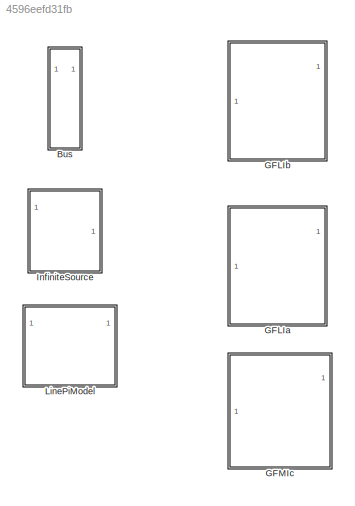
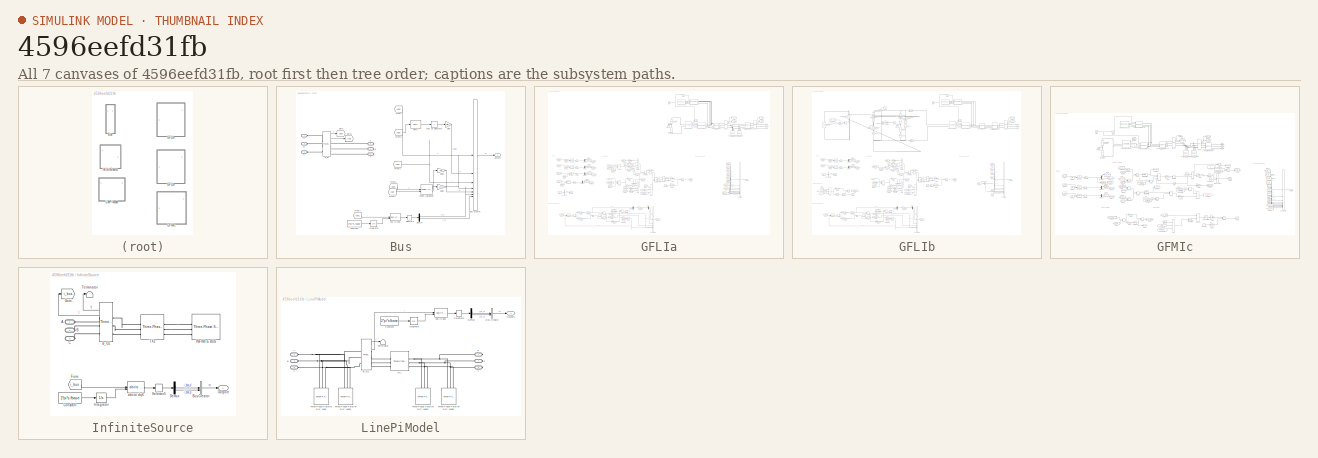
[diagram: thumbnail index - all 7 canvases of the model, root first then tree order]
MODEL slx_4596eefd31fb
KIND library
CONFIG AbsTol = auto
CONFIG EnableMultiTasking = off
CONFIG FixedStep = auto
CONFIG MaxStep = auto
CONFIG MinStep = auto
CONFIG RelTol = 1e-3
CONFIG SampleTimeConstraint = Unconstrained
CONFIG SolverName = VariableStepAuto
CONFIG StartTime = 0.0
CONFIG StopTime = 10.0
BLOCK [SubSystem] Bus
BLOCK [PMIOPort] Bus/A
  Side = Left
BLOCK [PMIOPort] Bus/B
  Port = 2
  Side = Left
BLOCK [Reference] Bus/B_G1  REF=spsThreePhaseVIMeasurementLib/Three-Phase
V-I Measurement
  SourceBlock = spsThreePhaseVIMeasurementLib/Three-Phase\nV-I Measurement
  SourceType = Three-Phase VI Measurement
BLOCK [BusCreator] Bus/Bus Creator
  DisplayOption = bar
  InheritFromInputs = on
  Inputs = 7
BLOCK [PMIOPort] Bus/C
  Port = 3
  Side = Left
BLOCK [Constant] Bus/Constant
  Value = 2*pi*s.fbase
BLOCK [Demux] Bus/Demux
  Outputs = 2
BLOCK [From] Bus/From
  GotoTag = Vabc
BLOCK [From] Bus/From1
  GotoTag = Vabc
BLOCK [From] Bus/From2
  GotoTag = Iabc
BLOCK [From] Bus/From3
  GotoTag = Vabc
BLOCK [From] Bus/From4
  GotoTag = Iabc
BLOCK [From] Bus/From5
  GotoTag = Vabc
BLOCK [Gain] Bus/Gain
  Gain = sqrt(2)/3
BLOCK [Gain] Bus/Gain1
  Gain = 2/3
BLOCK [Gain] Bus/Gain2
  Gain = 2/3
BLOCK [Goto] Bus/Goto
  GotoTag = Vabc
BLOCK [Goto] Bus/Goto1
  GotoTag = Iabc
BLOCK [Integrator] Bus/Integrator
BLOCK [Outport] Bus/Outport
  IconDisplay = Signal name
BLOCK [Reference] Bus/RMS  REF=spsRMSLib/RMS
  SourceBlock = spsRMSLib/RMS
  SourceType = RMS
BLOCK [Selector] Bus/Selector5
  IndexOptions = Index vector (dialog)
  Indices = [1 2]
  InputPortWidth = 3
  OutputSizes = 1
BLOCK [Sum] Bus/Sum of Elements
  IconShape = rectangular
  Inputs = +
BLOCK [PMIOPort] Bus/a
  Port = 4
  Side = Right
BLOCK [Reference] Bus/abc to dq6  REF=spsabctodq0Lib/abc to dq0
  SourceBlock = spsabctodq0Lib/abc to dq0
  SourceType = abc to dq0 Transformation
BLOCK [PMIOPort] Bus/b
  Port = 5
  Side = Right
BLOCK [PMIOPort] Bus/c
  Port = 6
  Side = Right
BLOCK [Reference] Bus/power_calculation  REF=spsPowerPositiveSequenceLib/Power
(Positive-Sequence)
  SourceBlock = spsPowerPositiveSequenceLib/Power\n(Positive-Sequence)
  SourceType = Power (Positive-Sequence)
BLOCK [SubSystem] GFLIa
BLOCK [PMIOPort] GFLIa/A
  Side = Right
BLOCK [Sum] GFLIa/Add11
  IconShape = rectangular
BLOCK [Sum] GFLIa/Add12
  IconShape = rectangular
BLOCK [Sum] GFLIa/Add2
  IconShape = rectangular
  Inputs = ++-
BLOCK [Sum] GFLIa/Add3
  IconShape = rectangular
  Inputs = ++-
BLOCK [Sum] GFLIa/Add4
  IconShape = rectangular
  Inputs = ++++
BLOCK [Sum] GFLIa/Add5
  IconShape = rectangular
  Inputs = ++++
BLOCK [Sum] GFLIa/Add6
  IconShape = rectangular
  Inputs = +-
BLOCK [Sum] GFLIa/Add8
  IconShape = rectangular
BLOCK [Sum] GFLIa/Add9
  IconShape = rectangular
  Inputs = +++
BLOCK [PMIOPort] GFLIa/B
  Port = 2
  Side = Right
BLOCK [Reference] GFLIa/B_G1  REF=spsThreePhaseVIMeasurementLib/Three-Phase
V-I Measurement
  SourceBlock = spsThreePhaseVIMeasurementLib/Three-Phase\nV-I Measurement
  SourceType = Three-Phase VI Measurement
BLOCK [Reference] GFLIa/B_G2  REF=spsThreePhaseVIMeasurementLib/Three-Phase
V-I Measurement
  SourceBlock = spsThreePhaseVIMeasurementLib/Three-Phase\nV-I Measurement
  SourceType = Three-Phase VI Measurement
BLOCK [BusCreator] GFLIa/Bus Creator
  DisplayOption = bar
  InheritFromInputs = on
  Inputs = 10
BLOCK [BusCreator] GFLIa/Bus Creator1
  DisplayOption = bar
  InheritFromInputs = on
  Inputs = 5
BLOCK [BusSelector] GFLIa/Bus Selector
  OutputSignals = int_pll,phase_pll
BLOCK [BusSelector] GFLIa/Bus Selector1
  NameLocation = top
  OutputSignals = angle
BLOCK [PMIOPort] GFLIa/C
  Port = 3
  Side = Right
BLOCK [ComplexToMagnitudeAngle] GFLIa/Complex to Magnitude-Angle1
BLOCK [Constant] GFLIa/Constant1
  Value = s.v_dc
BLOCK [Constant] GFLIa/Constant13
  Value = s.fbase*2*pi
BLOCK [Constant] GFLIa/Constant17
  Value = 2*pi
BLOCK [Constant] GFLIa/Constant2
BLOCK [Constant] GFLIa/Constant3
  Value = [ 0  -2*pi/3  2*pi/3]
BLOCK [Constant] GFLIa/Constant4
  Value = ts*s.fbase*(2*pi)
BLOCK [Constant] GFLIa/Constant5
  Value = s.emt_init.i_bus_d
BLOCK [Constant] GFLIa/Constant6
  Value = s.emt_init.i_bus_q
BLOCK [Reference] GFLIa/DC Voltage Source2  REF=spsDCVoltageSourceLib/DC Voltage Source
  SourceBlock = spsDCVoltageSourceLib/DC Voltage Source
  SourceType = DC Voltage Source
BLOCK [Reference] GFLIa/DC Voltage Source3  REF=spsDCVoltageSourceLib/DC Voltage Source
  SourceBlock = spsDCVoltageSourceLib/DC Voltage Source
  SourceType = DC Voltage Source
BLOCK [Demux] GFLIa/Demux
  Outputs = 2
BLOCK [Demux] GFLIa/Demux1
  Outputs = 2
BLOCK [Demux] GFLIa/Demux2
  Outputs = 2
BLOCK [Demux] GFLIa/Demux3
  Outputs = 2
BLOCK [Demux] GFLIa/Demux5
  Outputs = 2
BLOCK [Product] GFLIa/Divide
  Inputs = */
BLOCK [From] GFLIa/From
  GotoTag = uref
BLOCK [From] GFLIa/From1
  GotoTag = v_lcl_sh
BLOCK [From] GFLIa/From10
  GotoTag = pi_cc_d
BLOCK [From] GFLIa/From11
  GotoTag = i_bus
BLOCK [From] GFLIa/From12
  GotoTag = i_bus_d
BLOCK [From] GFLIa/From13
  GotoTag = i_bus_q
BLOCK [From] GFLIa/From14
  GotoTag = i_bus_q
BLOCK [From] GFLIa/From15
  GotoTag = v_bus_d
BLOCK [From] GFLIa/From16
  GotoTag = i_bus_d
BLOCK [From] GFLIa/From17
  GotoTag = angle
BLOCK [From] GFLIa/From18
  GotoTag = v_bus_q
BLOCK [From] GFLIa/From19
  GotoTag = i_bus_d
BLOCK [From] GFLIa/From2
  GotoTag = angle
BLOCK [From] GFLIa/From20
  GotoTag = i_bus_q
BLOCK [From] GFLIa/From21
  GotoTag = angle
BLOCK [From] GFLIa/From22
  GotoTag = PLL
BLOCK [From] GFLIa/From23
  GotoTag = i_vsc_q
BLOCK [From] GFLIa/From24
  GotoTag = v_lcl_sh_q
BLOCK [From] GFLIa/From25
  GotoTag = v_lcl_sh_d
BLOCK [From] GFLIa/From27
  GotoTag = pi_cc_q
BLOCK [From] GFLIa/From3
  GotoTag = i_vsc
BLOCK [From] GFLIa/From4
  GotoTag = angle
BLOCK [From] GFLIa/From5
  GotoTag = i_vsc_d
BLOCK [From] GFLIa/From6
  GotoTag = v_bus
BLOCK [From] GFLIa/From7
  GotoTag = angle
BLOCK [From] GFLIa/From8
  GotoTag = PLL
BLOCK [From] GFLIa/From9
  GotoTag = v_bus
BLOCK [Gain] GFLIa/Gain
  Gain = s.kp_cc
BLOCK [Gain] GFLIa/Gain1
  Gain = s.ki_cc
BLOCK [Gain] GFLIa/Gain10
  Gain = s.ki_cc
BLOCK [Gain] GFLIa/Gain11
  Gain = 1/2*sqrt(3)*s.vbase
BLOCK [Gain] GFLIa/Gain18
  Gain = s.fbase*2*pi
BLOCK [Gain] GFLIa/Gain19
  Gain = s.kp_pll
BLOCK [Gain] GFLIa/Gain2
  Gain = s.kp_cc
BLOCK [Gain] GFLIa/Gain20
  Gain = s.ki_pll
BLOCK [Gain] GFLIa/Gain21
  Gain = s.fbase
BLOCK [Gain] GFLIa/Gain3
  Gain = s.fbase
BLOCK [Gain] GFLIa/Gain4
  Gain = s.beta
BLOCK [Gain] GFLIa/Gain5
  Gain = s.beta
BLOCK [Gain] GFLIa/Gain6
  Gain = s.x_pll_rescale
  Multiplication = Matrix(K*u)
BLOCK [Gain] GFLIa/Gain7
  Gain = -(s.lf1+(s.txr_l1 + s.txr_l2) * s.sbase / s.txr_sbase)
BLOCK [Gain] GFLIa/Gain8
  Gain = s.lf1+(s.txr_l1 + s.txr_l2) * s.sbase / s.txr_sbase
BLOCK [Gain] GFLIa/Gain9
  Gain = sqrt(2)*s.vbase/sqrt(3)
BLOCK [Goto] GFLIa/Goto
  GotoTag = pi_cc_d
BLOCK [Goto] GFLIa/Goto1
  GotoTag = v_bus_q
BLOCK [Goto] GFLIa/Goto10
  GotoTag = i_vsc
BLOCK [Goto] GFLIa/Goto11
  GotoTag = i_bus_q
BLOCK [Goto] GFLIa/Goto12
  GotoTag = i_vsc_q
BLOCK [Goto] GFLIa/Goto13
  GotoTag = PLL
BLOCK [Goto] GFLIa/Goto14
  GotoTag = angle
BLOCK [Goto] GFLIa/Goto15
  GotoTag = i_vsc_d
BLOCK [Goto] GFLIa/Goto16
  GotoTag = v_bus
BLOCK [Goto] GFLIa/Goto2
  GotoTag = v_bus_d
BLOCK [Goto] GFLIa/Goto3
  GotoTag = i_bus
BLOCK [Goto] GFLIa/Goto4
  GotoTag = v_lcl_sh
BLOCK [Goto] GFLIa/Goto5
  GotoTag = pi_cc_q
BLOCK [Goto] GFLIa/Goto6
  GotoTag = v_lcl_sh_q
BLOCK [Goto] GFLIa/Goto7
  GotoTag = v_lcl_sh_d
BLOCK [Goto] GFLIa/Goto8
  GotoTag = uref
BLOCK [Goto] GFLIa/Goto9
  GotoTag = i_bus_d
BLOCK [Reference] GFLIa/Ground3  REF=spsGroundLib/Ground
  NameLocation = right
  SourceBlock = spsGroundLib/Ground
  SourceType = Ground
BLOCK [Inport] GFLIa/In1
  IconDisplay = Signal name
BLOCK [Inport] GFLIa/In4
  IconDisplay = Signal name
  Port = 2
BLOCK [Integrator] GFLIa/Integrator
  InitialCondition = s.emt_init.pi_cc_d
BLOCK [Integrator] GFLIa/Integrator1
  InitialCondition = s.emt_init.pi_cc_q
BLOCK [Integrator] GFLIa/Integrator4
  InitialCondition = s.emt_init.angle_ref*pi/180
BLOCK [Integrator] GFLIa/Integrator5
BLOCK [Integrator] GFLIa/Integrator6
  InitialCondition = s.emt_init.angle_ref*pi/180
BLOCK [Math] GFLIa/Mod
  Operator = mod
BLOCK [Mux] GFLIa/Mux1
  DisplayOption = bar
  Inputs = 2
BLOCK [Logic] GFLIa/NOT
  AllPortsSameDT = off
  IconShape = distinctive
  Operator = NOT
  OutDataTypeStr = boolean
BLOCK [Outport] GFLIa/Outport
  IconDisplay = Signal name
BLOCK [Product] GFLIa/Product3
  Inputs = **
  RndMeth = Zero
BLOCK [RealImagToComplex] GFLIa/Real-Imag to Complex1
BLOCK [Selector] GFLIa/Selector1
  IndexOptions = Index vector (dialog)
  Indices = [1 2]
  InputPortWidth = 3
  OutputSizes = 1
BLOCK [Selector] GFLIa/Selector2
  IndexOptions = Index vector (dialog)
  Indices = 2
  InputPortWidth = 3
  OutputSizes = 1
BLOCK [Selector] GFLIa/Selector3
  IndexOptions = Index vector (dialog)
  Indices = [1 2]
  InputPortWidth = 3
  OutputSizes = 1
BLOCK [Selector] GFLIa/Selector4
  IndexOptions = Index vector (dialog)
  Indices = [1 2]
  InputPortWidth = 3
  OutputSizes = 1
BLOCK [Selector] GFLIa/Selector5
  IndexOptions = Index vector (dialog)
  Indices = [1 2]
  InputPortWidth = 3
  OutputSizes = 1
BLOCK [Step] GFLIa/Step
  SampleTime = 0
  Time = ts
BLOCK [Sum] GFLIa/Sum1
  IconShape = rectangular
  SaturateOnIntegerOverflow = on
BLOCK [Reference] GFLIa/Three-Phase Breaker1  REF=spsThreePhaseBreakerLib/Three-Phase Breaker
  SourceBlock = spsThreePhaseBreakerLib/Three-Phase Breaker
  SourceType = Three-Phase Breaker
BLOCK [Reference] GFLIa/Three-Phase Breaker2  REF=spsThreePhaseBreakerLib/Three-Phase Breaker
  SourceBlock = spsThreePhaseBreakerLib/Three-Phase Breaker
  SourceType = Three-Phase Breaker
BLOCK [Reference] GFLIa/Three-Phase Parallel RLC Load  REF=spsThreePhaseParallelRLCLoadLib/Three-Phase
Parallel RLC Load
  AttributesFormatString = \n
  LibrarySourceBlock = sps_lib/Passives/Three-Phase\nParallel RLC Load
  SourceBlock = spsThreePhaseParallelRLCLoadLib/Three-Phase\nParallel RLC Load
  SourceType = Three-Phase Parallel RLC Load
BLOCK [Reference] GFLIa/Three-Phase Parallel RLC Load1  REF=spsThreePhaseParallelRLCLoadLib/Three-Phase
Parallel RLC Load
  AttributesFormatString = \n
  LibrarySourceBlock = sps_lib/Passives/Three-Phase\nParallel RLC Load
  SourceBlock = spsThreePhaseParallelRLCLoadLib/Three-Phase\nParallel RLC Load
  SourceType = Three-Phase Parallel RLC Load
BLOCK [Reference] GFLIa/Three-Phase Series RLC Branch1  REF=spsThreePhaseSeriesRLCBranchLib/Three-Phase
Series RLC Branch
  AttributesFormatString = \n
  SourceBlock = spsThreePhaseSeriesRLCBranchLib/Three-Phase\nSeries RLC Branch
  SourceType = Three-Phase Series RLC Branch
BLOCK [Reference] GFLIa/Three-Phase Source  REF=spsThreePhaseSourceLib/Three-Phase Source
  SourceBlock = spsThreePhaseSourceLib/Three-Phase Source
  SourceType = Three-Phase Source
BLOCK [Reference] GFLIa/Three-Phase Transformer (Two Windings)15  REF=spsThreePhaseTransformerTwoWindingsLib/Three-Phase
Transformer
(Two Windings)
  SourceBlock = spsThreePhaseTransformerTwoWindingsLib/Three-Phase\nTransformer\n(Two Windings)
  SourceType = Three-Phase Transformer (Two Windings)
BLOCK [TransportDelay] GFLIa/Transport Delay
  DelayTime = ts
  InitialOutput = s.emt_init.v_vsc_mag*[cosd(s.emt_init.v_vsc_DQ_phase) cosd(s.emt_init.v_vsc_DQ_phase-120) cosd(s.emt_init.v_vsc_DQ_phase+120)]
BLOCK [Trigonometry] GFLIa/Trigonometric Function1
  Operator = cos
BLOCK [Reference] GFLIa/VSC (Average Model)  REF=spsUniversalBridgeLib/Universal Bridge
  SourceBlock = spsUniversalBridgeLib/Universal Bridge
  SourceType = Universal Bridge
BLOCK [Reference] GFLIa/abc to dq0  REF=spsabctodq0Lib/abc to dq0
  SourceBlock = spsabctodq0Lib/abc to dq0
  SourceType = abc to dq0 Transformation
BLOCK [Reference] GFLIa/abc to dq1  REF=spsabctodq0Lib/abc to dq0
  SourceBlock = spsabctodq0Lib/abc to dq0
  SourceType = abc to dq0 Transformation
BLOCK [Reference] GFLIa/abc to dq2  REF=spsabctodq0Lib/abc to dq0
  SourceBlock = spsabctodq0Lib/abc to dq0
  SourceType = abc to dq0 Transformation
BLOCK [Reference] GFLIa/abc to dq3  REF=spsabctodq0Lib/abc to dq0
  SourceBlock = spsabctodq0Lib/abc to dq0
  SourceType = abc to dq0 Transformation
BLOCK [Reference] GFLIa/abc to dq6  REF=spsabctodq0Lib/abc to dq0
  SourceBlock = spsabctodq0Lib/abc to dq0
  SourceType = abc to dq0 Transformation
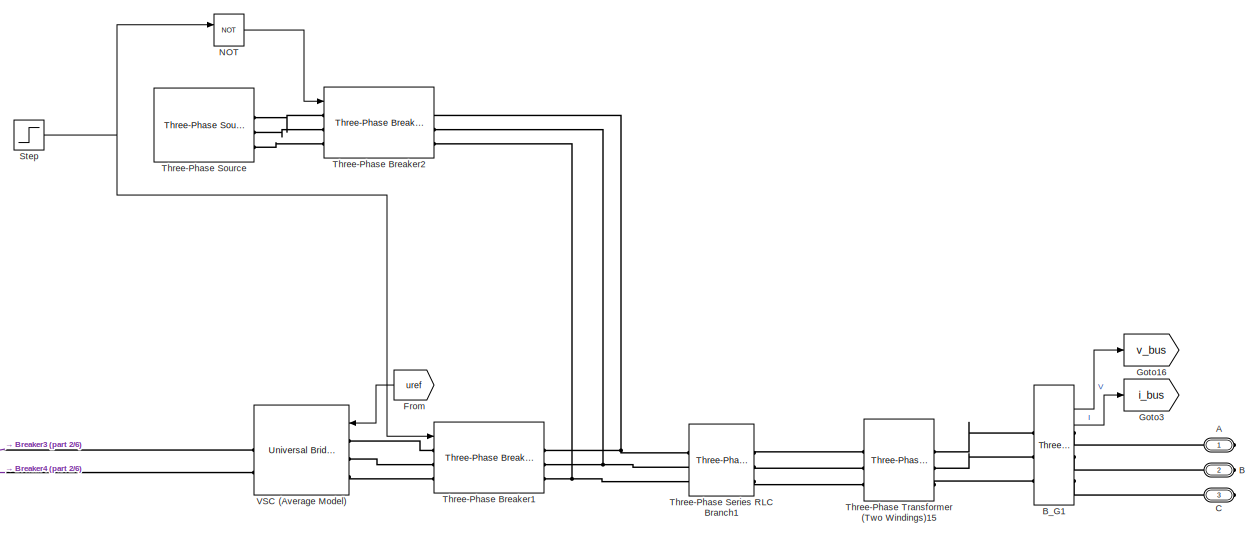
[diagram: GFLIb - part 1/6, top right region]
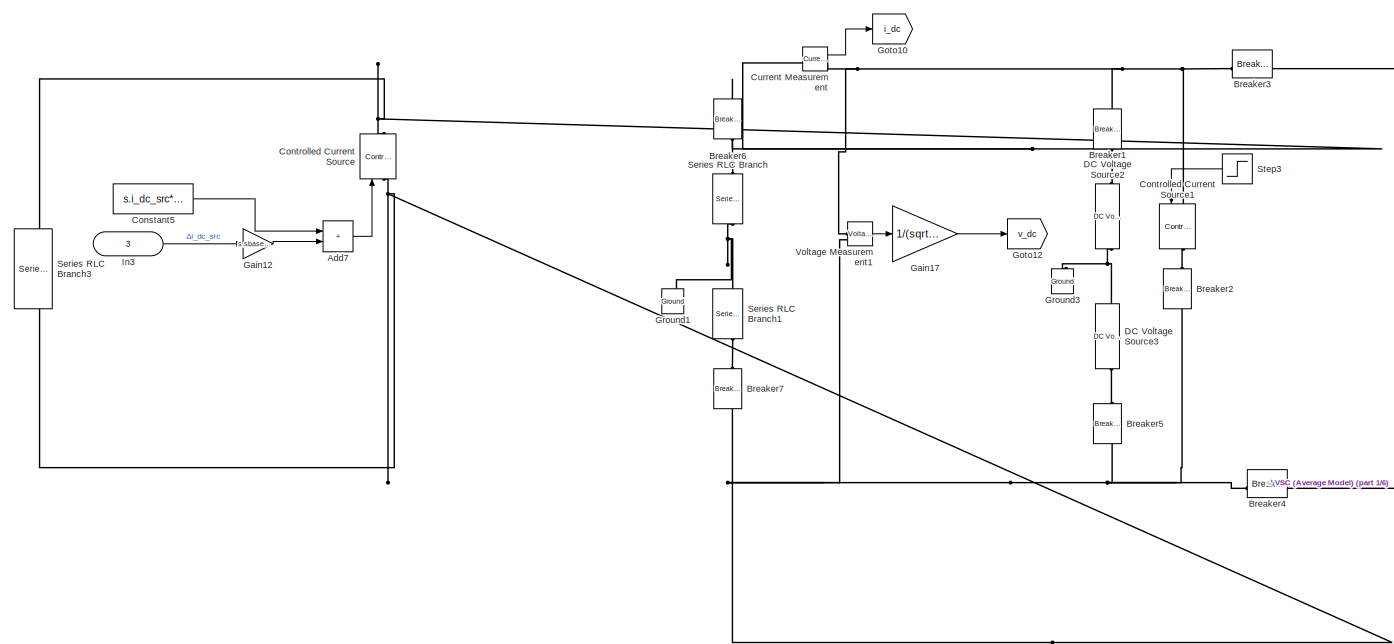
[diagram: GFLIb - part 2/6, top left region]
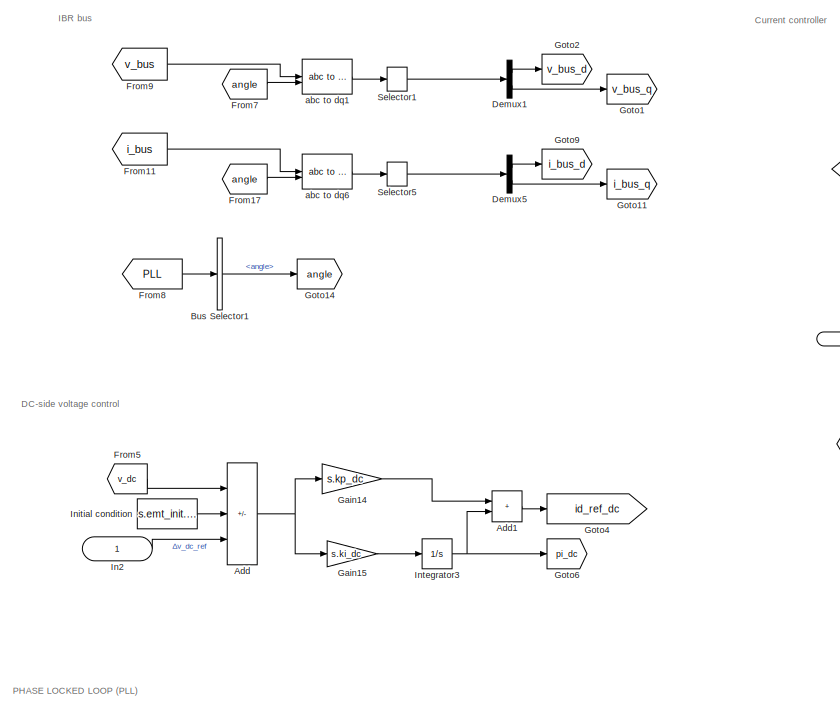
[diagram: GFLIb - part 3/6, middle left region]
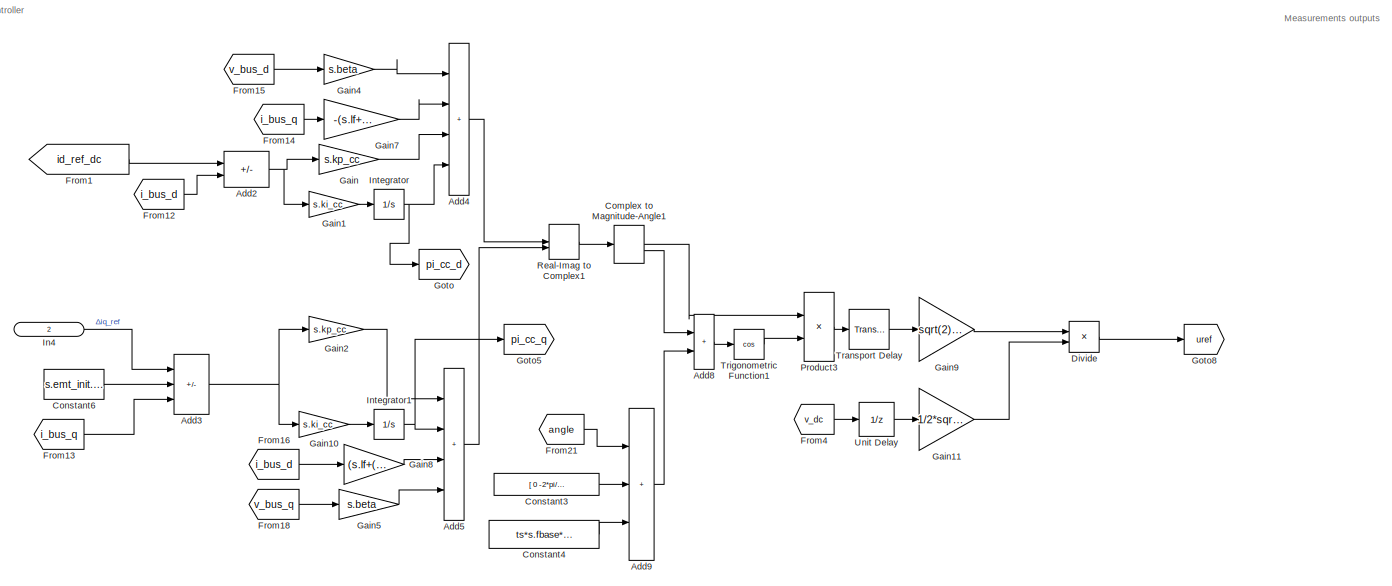
[diagram: GFLIb - part 4/6, central region]
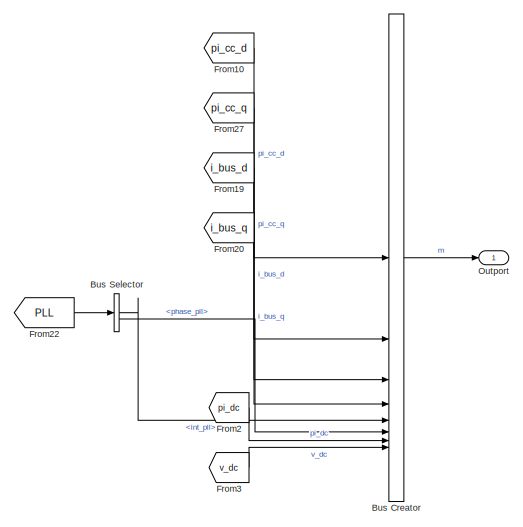
[diagram: GFLIb - part 5/6, middle right region]
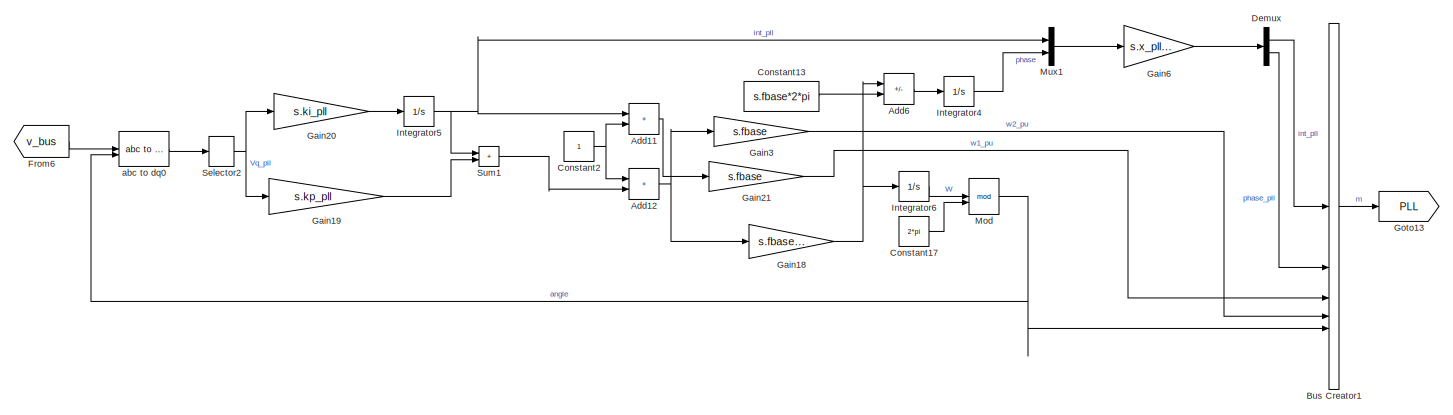
[diagram: GFLIb - part 6/6, bottom left region]
BLOCK [SubSystem] GFLIb
BLOCK [PMIOPort] GFLIb/A
  Side = Right
BLOCK [Sum] GFLIb/Add
  IconShape = rectangular
  Inputs = +--
BLOCK [Sum] GFLIb/Add1
  IconShape = rectangular
BLOCK [Sum] GFLIb/Add11
  IconShape = rectangular
BLOCK [Sum] GFLIb/Add12
  IconShape = rectangular
BLOCK [Sum] GFLIb/Add2
  IconShape = rectangular
  Inputs = +-
BLOCK [Sum] GFLIb/Add3
  IconShape = rectangular
  Inputs = ++-
BLOCK [Sum] GFLIb/Add4
  IconShape = rectangular
  Inputs = ++++
BLOCK [Sum] GFLIb/Add5
  IconShape = rectangular
  Inputs = ++++
BLOCK [Sum] GFLIb/Add6
  IconShape = rectangular
  Inputs = +-
BLOCK [Sum] GFLIb/Add7
  IconShape = rectangular
BLOCK [Sum] GFLIb/Add8
  IconShape = rectangular
BLOCK [Sum] GFLIb/Add9
  IconShape = rectangular
  Inputs = +++
BLOCK [PMIOPort] GFLIb/B
  Port = 2
  Side = Right
BLOCK [Reference] GFLIb/B_G1  REF=spsThreePhaseVIMeasurementLib/Three-Phase
V-I Measurement
  LibrarySourceBlock = sps_lib/Sensors and Measurements/Three-Phase\nV-I Measurement
  SourceBlock = spsThreePhaseVIMeasurementLib/Three-Phase\nV-I Measurement
  SourceType = Three-Phase VI Measurement
BLOCK [Reference] GFLIb/Breaker1  REF=spsBreakerLib/Breaker
  LibrarySourceBlock = sps_lib/Power Grid Elements/Breaker
  NameLocation = left
  SourceBlock = spsBreakerLib/Breaker
  SourceType = Breaker
BLOCK [Reference] GFLIb/Breaker2  REF=spsBreakerLib/Breaker
  LibrarySourceBlock = sps_lib/Power Grid Elements/Breaker
  NameLocation = left
  SourceBlock = spsBreakerLib/Breaker
  SourceType = Breaker
BLOCK [Reference] GFLIb/Breaker3  REF=spsBreakerLib/Breaker
  LibrarySourceBlock = sps_lib/Power Grid Elements/Breaker
  NameLocation = top
  SourceBlock = spsBreakerLib/Breaker
  SourceType = Breaker
BLOCK [Reference] GFLIb/Breaker4  REF=spsBreakerLib/Breaker
  LibrarySourceBlock = sps_lib/Power Grid Elements/Breaker
  NameLocation = top
  SourceBlock = spsBreakerLib/Breaker
  SourceType = Breaker
BLOCK [Reference] GFLIb/Breaker5  REF=spsBreakerLib/Breaker
  LibrarySourceBlock = sps_lib/Power Grid Elements/Breaker
  NameLocation = left
  SourceBlock = spsBreakerLib/Breaker
  SourceType = Breaker
BLOCK [Reference] GFLIb/Breaker6  REF=spsBreakerLib/Breaker
  LibrarySourceBlock = sps_lib/Power Grid Elements/Breaker
  NameLocation = left
  SourceBlock = spsBreakerLib/Breaker
  SourceType = Breaker
BLOCK [Reference] GFLIb/Breaker7  REF=spsBreakerLib/Breaker
  LibrarySourceBlock = sps_lib/Power Grid Elements/Breaker
  NameLocation = left
  SourceBlock = spsBreakerLib/Breaker
  SourceType = Breaker
BLOCK [BusCreator] GFLIb/Bus Creator
  DisplayOption = bar
  InheritFromInputs = on
  Inputs = 8
BLOCK [BusCreator] GFLIb/Bus Creator1
  DisplayOption = bar
  InheritFromInputs = on
  Inputs = 5
BLOCK [BusSelector] GFLIb/Bus Selector
  OutputSignals = int_pll,phase_pll
BLOCK [BusSelector] GFLIb/Bus Selector1
  NameLocation = top
  OutputSignals = angle
BLOCK [PMIOPort] GFLIb/C
  Port = 3
  Side = Right
BLOCK [ComplexToMagnitudeAngle] GFLIb/Complex to Magnitude-Angle1
BLOCK [Constant] GFLIb/Constant13
  Value = s.fbase*2*pi
BLOCK [Constant] GFLIb/Constant17
  Value = 2*pi
BLOCK [Constant] GFLIb/Constant2
BLOCK [Constant] GFLIb/Constant3
  Value = [ 0  -2*pi/3  2*pi/3]
BLOCK [Constant] GFLIb/Constant4
  Value = ts*s.fbase*(2*pi)
BLOCK [Constant] GFLIb/Constant5
  Value = s.i_dc_src*s.sbase/(sqrt(3)*s.vbase)
BLOCK [Constant] GFLIb/Constant6
  Value = s.emt_init.i_bus_q
BLOCK [Reference] GFLIb/Controlled Current Source  REF=spsControlledCurrentSourceLib/Controlled Current Source
  LibrarySourceBlock = sps_lib/Sources/Controlled Current Source
  SourceBlock = spsControlledCurrentSourceLib/Controlled Current Source
  SourceType = Controlled Current Source
BLOCK [Reference] GFLIb/Controlled Current Source1  REF=spsControlledCurrentSourceLib/Controlled Current Source
  LibrarySourceBlock = sps_lib/Sources/Controlled Current Source
  NameLocation = top
  SourceBlock = spsControlledCurrentSourceLib/Controlled Current Source
  SourceType = Controlled Current Source
BLOCK [Reference] GFLIb/Current Measurement  REF=spsCurrentMeasurementLib/Current Measurement
  LibrarySourceBlock = sps_lib/Sensors and Measurements/Current Measurement
  SourceBlock = spsCurrentMeasurementLib/Current Measurement
  SourceType = Current Measurement
  UserDataPersistent = on
BLOCK [Reference] GFLIb/DC Voltage Source2  REF=spsDCVoltageSourceLib/DC Voltage Source
  LibrarySourceBlock = sps_lib/Sources/DC Voltage Source
  SourceBlock = spsDCVoltageSourceLib/DC Voltage Source
  SourceType = DC Voltage Source
BLOCK [Reference] GFLIb/DC Voltage Source3  REF=spsDCVoltageSourceLib/DC Voltage Source
  LibrarySourceBlock = sps_lib/Sources/DC Voltage Source
  SourceBlock = spsDCVoltageSourceLib/DC Voltage Source
  SourceType = DC Voltage Source
BLOCK [Demux] GFLIb/Demux
  Outputs = 2
BLOCK [Demux] GFLIb/Demux1
  Outputs = 2
BLOCK [Demux] GFLIb/Demux5
  Outputs = 2
BLOCK [Product] GFLIb/Divide
  Inputs = */
BLOCK [From] GFLIb/From
  GotoTag = uref
BLOCK [From] GFLIb/From1
  GotoTag = id_ref_dc
BLOCK [From] GFLIb/From10
  GotoTag = pi_cc_d
BLOCK [From] GFLIb/From11
  GotoTag = i_bus
BLOCK [From] GFLIb/From12
  GotoTag = i_bus_d
BLOCK [From] GFLIb/From13
  GotoTag = i_bus_q
BLOCK [From] GFLIb/From14
  GotoTag = i_bus_q
BLOCK [From] GFLIb/From15
  GotoTag = v_bus_d
BLOCK [From] GFLIb/From16
  GotoTag = i_bus_d
BLOCK [From] GFLIb/From17
  GotoTag = angle
BLOCK [From] GFLIb/From18
  GotoTag = v_bus_q
BLOCK [From] GFLIb/From19
  GotoTag = i_bus_d
BLOCK [From] GFLIb/From2
  GotoTag = pi_dc
BLOCK [From] GFLIb/From20
  GotoTag = i_bus_q
BLOCK [From] GFLIb/From21
  GotoTag = angle
BLOCK [From] GFLIb/From22
  GotoTag = PLL
BLOCK [From] GFLIb/From27
  GotoTag = pi_cc_q
BLOCK [From] GFLIb/From3
  GotoTag = v_dc
BLOCK [From] GFLIb/From4
  GotoTag = v_dc
BLOCK [From] GFLIb/From5
  GotoTag = v_dc
BLOCK [From] GFLIb/From6
  GotoTag = v_bus
BLOCK [From] GFLIb/From7
  GotoTag = angle
BLOCK [From] GFLIb/From8
  GotoTag = PLL
BLOCK [From] GFLIb/From9
  GotoTag = v_bus
BLOCK [Gain] GFLIb/Gain
  Gain = s.kp_cc
BLOCK [Gain] GFLIb/Gain1
  Gain = s.ki_cc
BLOCK [Gain] GFLIb/Gain10
  Gain = s.ki_cc
BLOCK [Gain] GFLIb/Gain11
  Gain = 1/2*sqrt(3)*s.vbase
BLOCK [Gain] GFLIb/Gain12
  Gain = s.sbase/(sqrt(3)*s.vbase)
BLOCK [Gain] GFLIb/Gain14
  Gain = s.kp_dc
BLOCK [Gain] GFLIb/Gain15
  Gain = s.ki_dc
BLOCK [Gain] GFLIb/Gain17
  Gain = 1/(sqrt(3)*s.vbase)
BLOCK [Gain] GFLIb/Gain18
  Gain = s.fbase*2*pi
BLOCK [Gain] GFLIb/Gain19
  Gain = s.kp_pll
BLOCK [Gain] GFLIb/Gain2
  Gain = s.kp_cc
BLOCK [Gain] GFLIb/Gain20
  Gain = s.ki_pll
BLOCK [Gain] GFLIb/Gain21
  Gain = s.fbase
BLOCK [Gain] GFLIb/Gain3
  Gain = s.fbase
BLOCK [Gain] GFLIb/Gain4
  Gain = s.beta
BLOCK [Gain] GFLIb/Gain5
  Gain = s.beta
BLOCK [Gain] GFLIb/Gain6
  Gain = s.x_pll_rescale
  Multiplication = Matrix(K*u)
BLOCK [Gain] GFLIb/Gain7
  Gain = -(s.lf+(s.txr_l1 + s.txr_l2)*s.sbase/s.txr_sbase)
BLOCK [Gain] GFLIb/Gain8
  Gain = (s.lf+(s.txr_l1 + s.txr_l2)*s.sbase/s.txr_sbase)
BLOCK [Gain] GFLIb/Gain9
  Gain = sqrt(2)*s.vbase/sqrt(3)
BLOCK [Goto] GFLIb/Goto
  GotoTag = pi_cc_d
BLOCK [Goto] GFLIb/Goto1
  GotoTag = v_bus_q
BLOCK [Goto] GFLIb/Goto10
  GotoTag = i_dc
BLOCK [Goto] GFLIb/Goto11
  GotoTag = i_bus_q
BLOCK [Goto] GFLIb/Goto12
  GotoTag = v_dc
BLOCK [Goto] GFLIb/Goto13
  GotoTag = PLL
BLOCK [Goto] GFLIb/Goto14
  GotoTag = angle
BLOCK [Goto] GFLIb/Goto16
  GotoTag = v_bus
BLOCK [Goto] GFLIb/Goto2
  GotoTag = v_bus_d
BLOCK [Goto] GFLIb/Goto3
  GotoTag = i_bus
BLOCK [Goto] GFLIb/Goto4
  GotoTag = id_ref_dc
BLOCK [Goto] GFLIb/Goto5
  GotoTag = pi_cc_q
BLOCK [Goto] GFLIb/Goto6
  GotoTag = pi_dc
BLOCK [Goto] GFLIb/Goto8
  GotoTag = uref
BLOCK [Goto] GFLIb/Goto9
  GotoTag = i_bus_d
BLOCK [Reference] GFLIb/Ground1  REF=spsGroundLib/Ground
  LibrarySourceBlock = sps_lib/Utilities/Ground
  NameLocation = right
  SourceBlock = spsGroundLib/Ground
  SourceType = Ground
BLOCK [Reference] GFLIb/Ground3  REF=spsGroundLib/Ground
  LibrarySourceBlock = sps_lib/Utilities/Ground
  NameLocation = right
  SourceBlock = spsGroundLib/Ground
  SourceType = Ground
BLOCK [Inport] GFLIb/In2
  IconDisplay = Signal name
BLOCK [Inport] GFLIb/In3
  IconDisplay = Signal name
  Port = 3
BLOCK [Inport] GFLIb/In4
  IconDisplay = Signal name
  Port = 2
BLOCK [Constant] GFLIb/Initial condition
  Value = s.emt_init.v_dc
BLOCK [Integrator] GFLIb/Integrator
  InitialCondition = s.emt_init.pi_cc_d
BLOCK [Integrator] GFLIb/Integrator1
  InitialCondition = s.emt_init.pi_cc_q
BLOCK [Integrator] GFLIb/Integrator3
  InitialCondition = s.emt_init.i_bus_d
BLOCK [Integrator] GFLIb/Integrator4
  InitialCondition = s.emt_init.angle_ref*pi/180
BLOCK [Integrator] GFLIb/Integrator5
BLOCK [Integrator] GFLIb/Integrator6
  InitialCondition = s.emt_init.angle_ref*pi/180
BLOCK [Math] GFLIb/Mod
  Operator = mod
BLOCK [Mux] GFLIb/Mux1
  DisplayOption = bar
  Inputs = 2
BLOCK [Logic] GFLIb/NOT
  AllPortsSameDT = off
  IconShape = distinctive
  Operator = NOT
  OutDataTypeStr = boolean
BLOCK [Outport] GFLIb/Outport
  IconDisplay = Signal name
BLOCK [Product] GFLIb/Product3
  Inputs = **
  RndMeth = Zero
BLOCK [RealImagToComplex] GFLIb/Real-Imag to Complex1
BLOCK [Selector] GFLIb/Selector1
  IndexOptions = Index vector (dialog)
  Indices = [1 2]
  InputPortWidth = 3
  OutputSizes = 1
BLOCK [Selector] GFLIb/Selector2
  IndexOptions = Index vector (dialog)
  Indices = 2
  InputPortWidth = 3
  OutputSizes = 1
BLOCK [Selector] GFLIb/Selector5
  IndexOptions = Index vector (dialog)
  Indices = [1 2]
  InputPortWidth = 3
  OutputSizes = 1
BLOCK [Reference] GFLIb/Series RLC Branch  REF=spsSeriesRLCBranchLib/Series RLC Branch
  LibrarySourceBlock = sps_lib/Passives/Series RLC Branch
  NameLocation = left
  SourceBlock = spsSeriesRLCBranchLib/Series RLC Branch
  SourceType = Series RLC Branch
BLOCK [Reference] GFLIb/Series RLC Branch1  REF=spsSeriesRLCBranchLib/Series RLC Branch
  LibrarySourceBlock = sps_lib/Passives/Series RLC Branch
  NameLocation = left
  SourceBlock = spsSeriesRLCBranchLib/Series RLC Branch
  SourceType = Series RLC Branch
BLOCK [Reference] GFLIb/Series RLC Branch3  REF=spsSeriesRLCBranchLib/Series RLC Branch
  LibrarySourceBlock = sps_lib/Passives/Series RLC Branch
  NameLocation = left
  SourceBlock = spsSeriesRLCBranchLib/Series RLC Branch
  SourceType = Series RLC Branch
BLOCK [Step] GFLIb/Step
  SampleTime = 0
  Time = ts
BLOCK [Step] GFLIb/Step3
  After = 0
  Before = s.emt_init.i_out*s.sbase/(sqrt(3)*s.vbase)
  SampleTime = ts
  Time = ts
BLOCK [Sum] GFLIb/Sum1
  IconShape = rectangular
  SaturateOnIntegerOverflow = on
BLOCK [Reference] GFLIb/Three-Phase Breaker1  REF=spsThreePhaseBreakerLib/Three-Phase Breaker
  LibrarySourceBlock = sps_lib/Power Grid Elements/Three-Phase Breaker
  SourceBlock = spsThreePhaseBreakerLib/Three-Phase Breaker
  SourceType = Three-Phase Breaker
BLOCK [Reference] GFLIb/Three-Phase Breaker2  REF=spsThreePhaseBreakerLib/Three-Phase Breaker
  LibrarySourceBlock = sps_lib/Power Grid Elements/Three-Phase Breaker
  SourceBlock = spsThreePhaseBreakerLib/Three-Phase Breaker
  SourceType = Three-Phase Breaker
BLOCK [Reference] GFLIb/Three-Phase Series RLC Branch1  REF=spsThreePhaseSeriesRLCBranchLib/Three-Phase
Series RLC Branch
  AttributesFormatString = \n
  SourceBlock = spsThreePhaseSeriesRLCBranchLib/Three-Phase\nSeries RLC Branch
  SourceType = Three-Phase Series RLC Branch
BLOCK [Reference] GFLIb/Three-Phase Source  REF=spsThreePhaseSourceLib/Three-Phase Source
  LibrarySourceBlock = sps_lib/Sources/Three-Phase Source
  SourceBlock = spsThreePhaseSourceLib/Three-Phase Source
  SourceType = Three-Phase Source
BLOCK [Reference] GFLIb/Three-Phase Transformer (Two Windings)15  REF=spsThreePhaseTransformerTwoWindingsLib/Three-Phase
Transformer
(Two Windings)
  LibrarySourceBlock = sps_lib/Power Grid Elements/Three-Phase\nTransformer\n(Two Windings)
  SourceBlock = spsThreePhaseTransformerTwoWindingsLib/Three-Phase\nTransformer\n(Two Windings)
  SourceType = Three-Phase Transformer (Two Windings)
BLOCK [TransportDelay] GFLIb/Transport Delay
  DelayTime = ts
  InitialOutput = s.emt_init.v_vsc_mag*[cosd(s.emt_init.v_vsc_DQ_phase) cosd(s.emt_init.v_vsc_DQ_phase-120) cosd(s.emt_init.v_vsc_DQ_phase+120)]
BLOCK [Trigonometry] GFLIb/Trigonometric Function1
  Operator = cos
BLOCK [UnitDelay] GFLIb/Unit Delay
  HasFrameUpgradeWarning = on
  InitialCondition = s.emt_init.v_dc
  SampleTime = ts
BLOCK [Reference] GFLIb/VSC (Average Model)  REF=spsUniversalBridgeLib/Universal Bridge
  SourceBlock = spsUniversalBridgeLib/Universal Bridge
  SourceType = Universal Bridge
BLOCK [Reference] GFLIb/Voltage Measurement1  REF=spsVoltageMeasurementLib/Voltage Measurement
  LibrarySourceBlock = sps_lib/Sensors and Measurements/Voltage Measurement
  SourceBlock = spsVoltageMeasurementLib/Voltage Measurement
  SourceType = Voltage Measurement
  UserDataPersistent = on
BLOCK [Reference] GFLIb/abc to dq0  REF=spsabctodq0Lib/abc to dq0
  LibrarySourceBlock = sps_lib/Control/abc to dq0
  SourceBlock = spsabctodq0Lib/abc to dq0
  SourceType = abc to dq0 Transformation
BLOCK [Reference] GFLIb/abc to dq1  REF=spsabctodq0Lib/abc to dq0
  SourceBlock = spsabctodq0Lib/abc to dq0
  SourceType = abc to dq0 Transformation
BLOCK [Reference] GFLIb/abc to dq6  REF=spsabctodq0Lib/abc to dq0
  SourceBlock = spsabctodq0Lib/abc to dq0
  SourceType = abc to dq0 Transformation
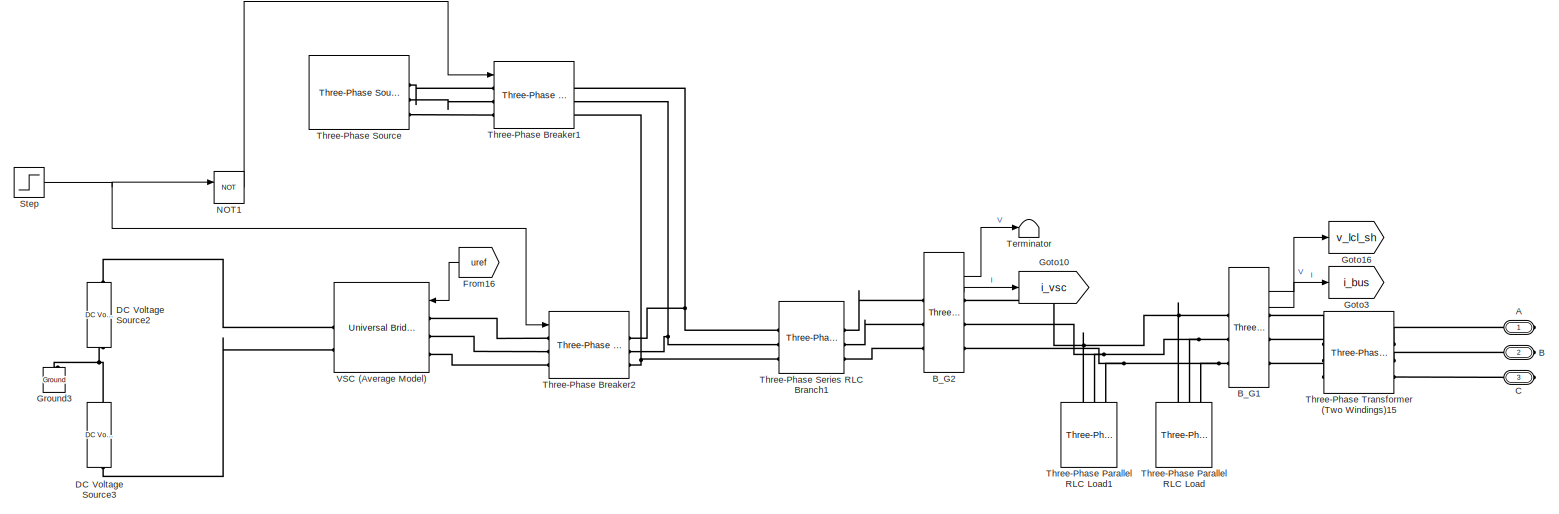
[diagram: GFMIc - part 1/4, top center region]
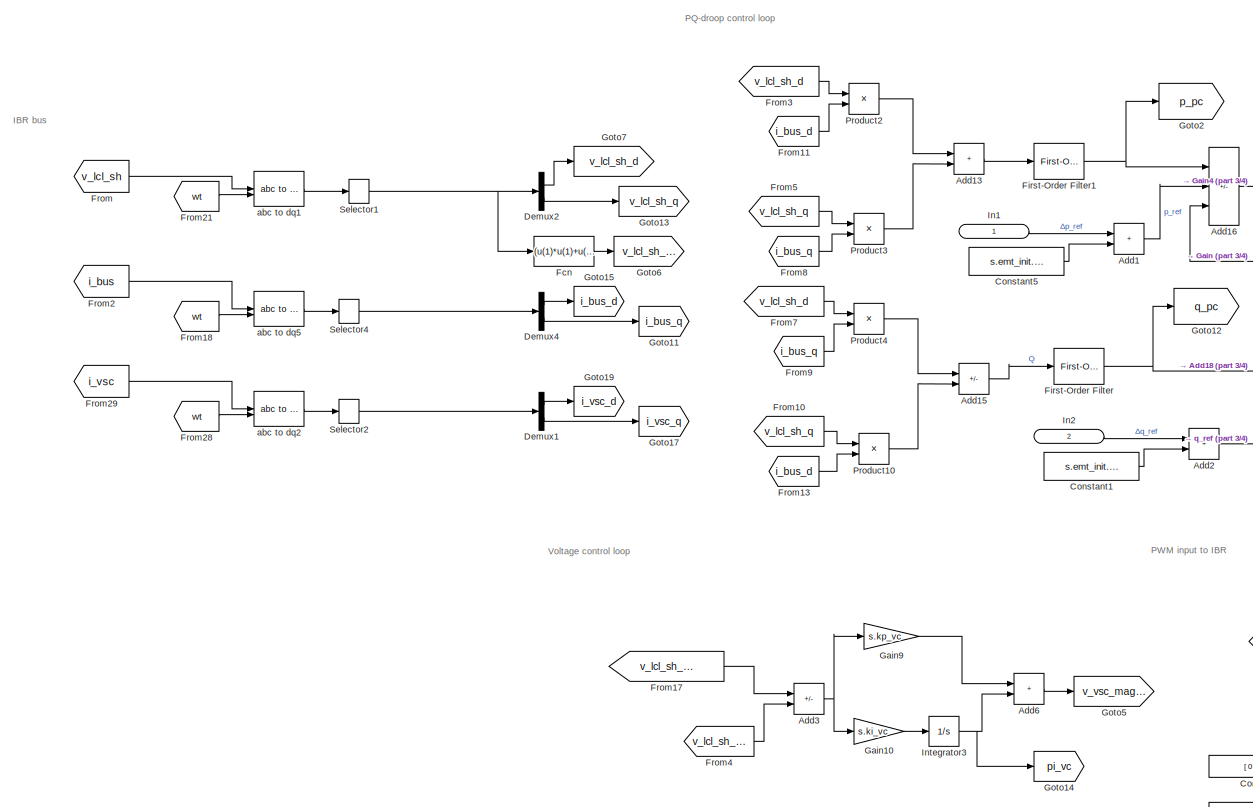
[diagram: GFMIc - part 2/4, bottom left region]
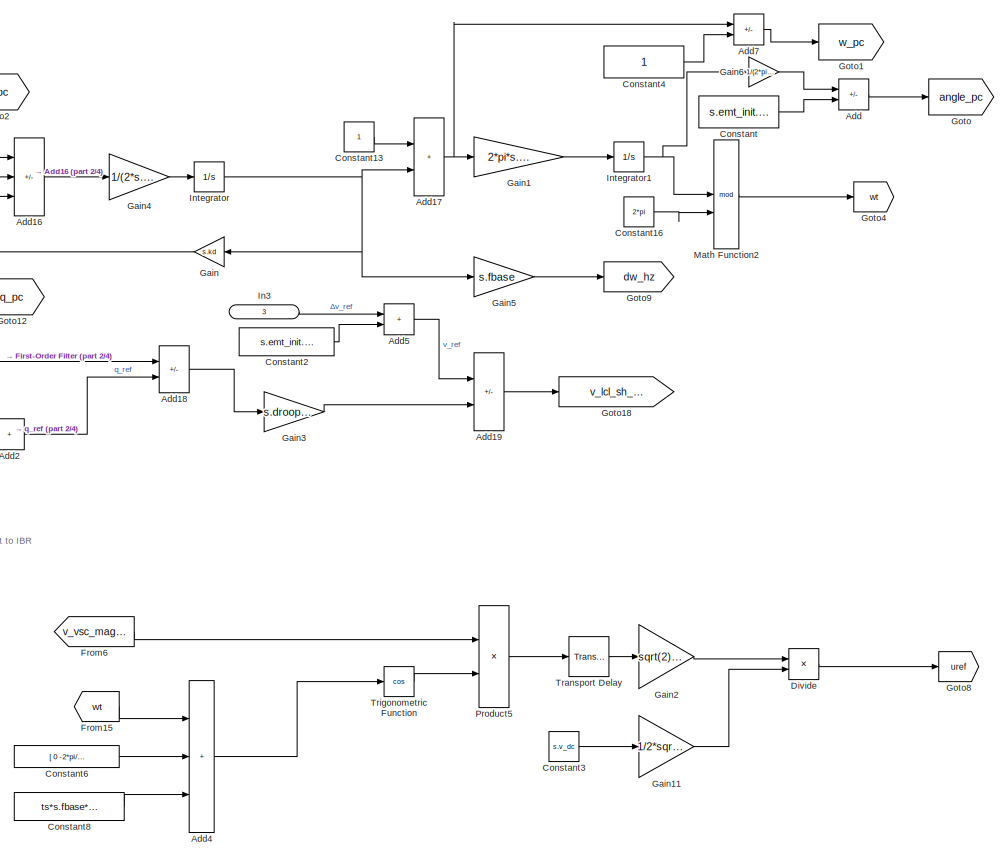
[diagram: GFMIc - part 3/4, bottom center region]
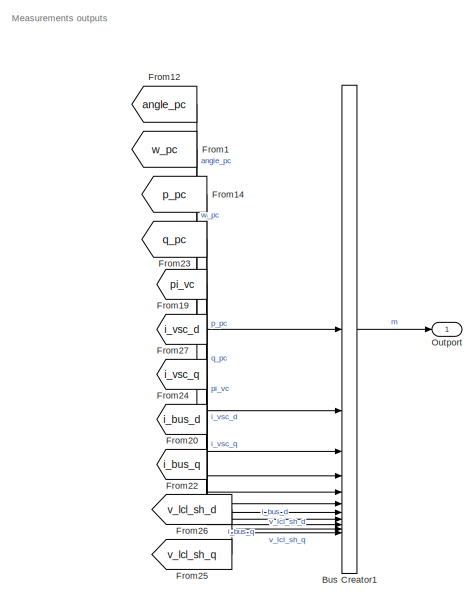
[diagram: GFMIc - part 4/4, middle right region]
BLOCK [SubSystem] GFMIc
BLOCK [PMIOPort] GFMIc/A
  Side = Right
BLOCK [Sum] GFMIc/Add
  IconShape = rectangular
  Inputs = +-
BLOCK [Sum] GFMIc/Add1
  IconShape = rectangular
BLOCK [Sum] GFMIc/Add13
  IconShape = rectangular
BLOCK [Sum] GFMIc/Add15
  IconShape = rectangular
  Inputs = -+
BLOCK [Sum] GFMIc/Add16
  IconShape = rectangular
  Inputs = -+-
BLOCK [Sum] GFMIc/Add17
  IconShape = rectangular
BLOCK [Sum] GFMIc/Add18
  IconShape = rectangular
  Inputs = +-
BLOCK [Sum] GFMIc/Add19
  IconShape = rectangular
  Inputs = +-
BLOCK [Sum] GFMIc/Add2
  IconShape = rectangular
BLOCK [Sum] GFMIc/Add3
  IconShape = rectangular
  Inputs = +-
BLOCK [Sum] GFMIc/Add4
  IconShape = rectangular
  Inputs = +++
BLOCK [Sum] GFMIc/Add5
  IconShape = rectangular
BLOCK [Sum] GFMIc/Add6
  IconShape = rectangular
BLOCK [Sum] GFMIc/Add7
  IconShape = rectangular
  Inputs = +-
BLOCK [PMIOPort] GFMIc/B
  Port = 2
  Side = Right
BLOCK [Reference] GFMIc/B_G1  REF=spsThreePhaseVIMeasurementLib/Three-Phase
V-I Measurement
  LibrarySourceBlock = sps_lib/Sensors and Measurements/Three-Phase\nV-I Measurement
  SourceBlock = spsThreePhaseVIMeasurementLib/Three-Phase\nV-I Measurement
  SourceType = Three-Phase VI Measurement
BLOCK [Reference] GFMIc/B_G2  REF=spsThreePhaseVIMeasurementLib/Three-Phase
V-I Measurement
  SourceBlock = spsThreePhaseVIMeasurementLib/Three-Phase\nV-I Measurement
  SourceType = Three-Phase VI Measurement
BLOCK [BusCreator] GFMIc/Bus Creator1
  DisplayOption = bar
  InheritFromInputs = on
  Inputs = 11
BLOCK [PMIOPort] GFMIc/C
  Port = 3
  Side = Right
BLOCK [Constant] GFMIc/Constant
  Value = s.emt_init.v_vsc_DQ_phase *pi/180
BLOCK [Constant] GFMIc/Constant1
  Value = s.emt_init.q_ref
BLOCK [Constant] GFMIc/Constant13
BLOCK [Constant] GFMIc/Constant16
  Value = 2*pi
BLOCK [Constant] GFMIc/Constant2
  Value = s.emt_init.v_ref
BLOCK [Constant] GFMIc/Constant3
  Value = s.v_dc
BLOCK [Constant] GFMIc/Constant4
BLOCK [Constant] GFMIc/Constant5
  Value = s.emt_init.p_ref
BLOCK [Constant] GFMIc/Constant6
  Value = [ 0  -2*pi/3  2*pi/3  ]
BLOCK [Constant] GFMIc/Constant8
  Value = ts*s.fbase*(2*pi)
BLOCK [Reference] GFMIc/DC Voltage Source2  REF=spsDCVoltageSourceLib/DC Voltage Source
  SourceBlock = spsDCVoltageSourceLib/DC Voltage Source
  SourceType = DC Voltage Source
BLOCK [Reference] GFMIc/DC Voltage Source3  REF=spsDCVoltageSourceLib/DC Voltage Source
  SourceBlock = spsDCVoltageSourceLib/DC Voltage Source
  SourceType = DC Voltage Source
BLOCK [Demux] GFMIc/Demux1
  Outputs = 2
BLOCK [Demux] GFMIc/Demux2
  Outputs = 2
BLOCK [Demux] GFMIc/Demux4
  Outputs = 2
BLOCK [Product] GFMIc/Divide
  Inputs = */
BLOCK [Fcn] GFMIc/Fcn
  Expr = (u(1)*u(1)+u(2)*u(2))^0.5
BLOCK [Reference] GFMIc/First-Order Filter  REF=spsFirstOrderFilterLib/First-Order
Filter
  LibrarySourceBlock = sps_lib/Control/Filters/First-Order\nFilter
  SourceBlock = spsFirstOrderFilterLib/First-Order\nFilter
  SourceType = First-Order Filter
BLOCK [Reference] GFMIc/First-Order Filter1  REF=spsFirstOrderFilterLib/First-Order
Filter
  LibrarySourceBlock = sps_lib/Control/Filters/First-Order\nFilter
  SourceBlock = spsFirstOrderFilterLib/First-Order\nFilter
  SourceType = First-Order Filter
BLOCK [From] GFMIc/From
  GotoTag = v_lcl_sh
BLOCK [From] GFMIc/From1
  GotoTag = w_pc
BLOCK [From] GFMIc/From10
  GotoTag = v_lcl_sh_q
BLOCK [From] GFMIc/From11
  GotoTag = i_bus_d
BLOCK [From] GFMIc/From12
  GotoTag = angle_pc
BLOCK [From] GFMIc/From13
  GotoTag = i_bus_d
BLOCK [From] GFMIc/From14
  GotoTag = p_pc
BLOCK [From] GFMIc/From15
  GotoTag = wt
BLOCK [From] GFMIc/From16
  GotoTag = uref
BLOCK [From] GFMIc/From17
  GotoTag = v_lcl_sh_mag_ref
BLOCK [From] GFMIc/From18
  GotoTag = wt
BLOCK [From] GFMIc/From19
  GotoTag = pi_vc
BLOCK [From] GFMIc/From2
  GotoTag = i_bus
BLOCK [From] GFMIc/From20
  GotoTag = i_bus_d
BLOCK [From] GFMIc/From21
  GotoTag = wt
BLOCK [From] GFMIc/From22
  GotoTag = i_bus_q
BLOCK [From] GFMIc/From23
  GotoTag = q_pc
BLOCK [From] GFMIc/From24
  GotoTag = i_vsc_q
BLOCK [From] GFMIc/From25
  GotoTag = v_lcl_sh_q
BLOCK [From] GFMIc/From26
  GotoTag = v_lcl_sh_d
BLOCK [From] GFMIc/From27
  GotoTag = i_vsc_d
BLOCK [From] GFMIc/From28
  GotoTag = wt
BLOCK [From] GFMIc/From29
  GotoTag = i_vsc
BLOCK [From] GFMIc/From3
  GotoTag = v_lcl_sh_d
BLOCK [From] GFMIc/From4
  GotoTag = v_lcl_sh_mag
BLOCK [From] GFMIc/From5
  GotoTag = v_lcl_sh_q
BLOCK [From] GFMIc/From6
  GotoTag = v_vsc_mag_ref
BLOCK [From] GFMIc/From7
  GotoTag = v_lcl_sh_d
BLOCK [From] GFMIc/From8
  GotoTag = i_bus_q
BLOCK [From] GFMIc/From9
  GotoTag = i_bus_q
BLOCK [Gain] GFMIc/Gain
  Gain = s.kd
BLOCK [Gain] GFMIc/Gain1
  Gain = 2*pi*s.fbase
BLOCK [Gain] GFMIc/Gain10
  Gain = s.ki_vc
BLOCK [Gain] GFMIc/Gain11
  Gain = 1/2*sqrt(3)*s.vbase
BLOCK [Gain] GFMIc/Gain2
  Gain = sqrt(2)*s.vbase/sqrt(3)
BLOCK [Gain] GFMIc/Gain3
  Gain = s.droop_q
BLOCK [Gain] GFMIc/Gain4
  Gain = 1/(2*s.h)
BLOCK [Gain] GFMIc/Gain5
  Gain = s.fbase
BLOCK [Gain] GFMIc/Gain6
  Gain = 1/(2*pi*s.fbase)
BLOCK [Gain] GFMIc/Gain9
  Gain = s.kp_vc
BLOCK [Goto] GFMIc/Goto
  GotoTag = angle_pc
BLOCK [Goto] GFMIc/Goto1
  GotoTag = w_pc
BLOCK [Goto] GFMIc/Goto10
  GotoTag = i_vsc
BLOCK [Goto] GFMIc/Goto11
  GotoTag = i_bus_q
BLOCK [Goto] GFMIc/Goto12
  GotoTag = q_pc
BLOCK [Goto] GFMIc/Goto13
  GotoTag = v_lcl_sh_q
BLOCK [Goto] GFMIc/Goto14
  GotoTag = pi_vc
BLOCK [Goto] GFMIc/Goto15
  GotoTag = i_bus_d
BLOCK [Goto] GFMIc/Goto16
  GotoTag = v_lcl_sh
BLOCK [Goto] GFMIc/Goto17
  GotoTag = i_vsc_q
BLOCK [Goto] GFMIc/Goto18
  GotoTag = v_lcl_sh_mag_ref
BLOCK [Goto] GFMIc/Goto19
  GotoTag = i_vsc_d
BLOCK [Goto] GFMIc/Goto2
  GotoTag = p_pc
BLOCK [Goto] GFMIc/Goto3
  GotoTag = i_bus
BLOCK [Goto] GFMIc/Goto4
  GotoTag = wt
BLOCK [Goto] GFMIc/Goto5
  GotoTag = v_vsc_mag_ref
BLOCK [Goto] GFMIc/Goto6
  GotoTag = v_lcl_sh_mag
BLOCK [Goto] GFMIc/Goto7
  GotoTag = v_lcl_sh_d
BLOCK [Goto] GFMIc/Goto8
  GotoTag = uref
BLOCK [Goto] GFMIc/Goto9
  GotoTag = dw_hz
BLOCK [Reference] GFMIc/Ground3  REF=spsGroundLib/Ground
  NameLocation = right
  SourceBlock = spsGroundLib/Ground
  SourceType = Ground
BLOCK [Inport] GFMIc/In1
  IconDisplay = Signal name
BLOCK [Inport] GFMIc/In2
  IconDisplay = Signal name
  Port = 2
BLOCK [Inport] GFMIc/In3
  IconDisplay = Signal name
  Port = 3
BLOCK [Integrator] GFMIc/Integrator
BLOCK [Integrator] GFMIc/Integrator1
  InitialCondition = s.emt_init.v_vsc_DQ_phase *pi/180
BLOCK [Integrator] GFMIc/Integrator3
  InitialCondition = s.emt_init.v_vsc_d
BLOCK [Math] GFMIc/Math Function2
  NameLocation = top
  Operator = mod
  SignedPower = on
BLOCK [Logic] GFMIc/NOT1
  AllPortsSameDT = off
  IconShape = distinctive
  Operator = NOT
  OutDataTypeStr = boolean
BLOCK [Outport] GFMIc/Outport
  IconDisplay = Signal name
BLOCK [Product] GFMIc/Product10
BLOCK [Product] GFMIc/Product2
BLOCK [Product] GFMIc/Product3
BLOCK [Product] GFMIc/Product4
BLOCK [Product] GFMIc/Product5
  Inputs = **
  RndMeth = Zero
BLOCK [Selector] GFMIc/Selector1
  IndexOptions = Index vector (dialog)
  Indices = [1 2]
  InputPortWidth = 3
  OutputSizes = 1
BLOCK [Selector] GFMIc/Selector2
  IndexOptions = Index vector (dialog)
  Indices = [1 2]
  InputPortWidth = 3
  OutputSizes = 1
BLOCK [Selector] GFMIc/Selector4
  IndexOptions = Index vector (dialog)
  Indices = [1 2]
  InputPortWidth = 3
  OutputSizes = 1
BLOCK [Step] GFMIc/Step
  SampleTime = 0
  Time = ts
BLOCK [Terminator] GFMIc/Terminator
BLOCK [Reference] GFMIc/Three-Phase Breaker1  REF=spsThreePhaseBreakerLib/Three-Phase Breaker
  LibrarySourceBlock = sps_lib/Power Grid Elements/Three-Phase Breaker
  SourceBlock = spsThreePhaseBreakerLib/Three-Phase Breaker
  SourceType = Three-Phase Breaker
BLOCK [Reference] GFMIc/Three-Phase Breaker2  REF=spsThreePhaseBreakerLib/Three-Phase Breaker
  LibrarySourceBlock = sps_lib/Power Grid Elements/Three-Phase Breaker
  SourceBlock = spsThreePhaseBreakerLib/Three-Phase Breaker
  SourceType = Three-Phase Breaker
BLOCK [Reference] GFMIc/Three-Phase Parallel RLC Load  REF=spsThreePhaseParallelRLCLoadLib/Three-Phase
Parallel RLC Load
  AttributesFormatString = \n
  LibrarySourceBlock = sps_lib/Passives/Three-Phase\nParallel RLC Load
  SourceBlock = spsThreePhaseParallelRLCLoadLib/Three-Phase\nParallel RLC Load
  SourceType = Three-Phase Parallel RLC Load
BLOCK [Reference] GFMIc/Three-Phase Parallel RLC Load1  REF=spsThreePhaseParallelRLCLoadLib/Three-Phase
Parallel RLC Load
  AttributesFormatString = \n
  LibrarySourceBlock = sps_lib/Passives/Three-Phase\nParallel RLC Load
  SourceBlock = spsThreePhaseParallelRLCLoadLib/Three-Phase\nParallel RLC Load
  SourceType = Three-Phase Parallel RLC Load
BLOCK [Reference] GFMIc/Three-Phase Series RLC Branch1  REF=spsThreePhaseSeriesRLCBranchLib/Three-Phase
Series RLC Branch
  AttributesFormatString = \n
  SourceBlock = spsThreePhaseSeriesRLCBranchLib/Three-Phase\nSeries RLC Branch
  SourceType = Three-Phase Series RLC Branch
BLOCK [Reference] GFMIc/Three-Phase Source  REF=spsThreePhaseSourceLib/Three-Phase Source
  SourceBlock = spsThreePhaseSourceLib/Three-Phase Source
  SourceType = Three-Phase Source
BLOCK [Reference] GFMIc/Three-Phase Transformer (Two Windings)15  REF=spsThreePhaseTransformerTwoWindingsLib/Three-Phase
Transformer
(Two Windings)
  SourceBlock = spsThreePhaseTransformerTwoWindingsLib/Three-Phase\nTransformer\n(Two Windings)
  SourceType = Three-Phase Transformer (Two Windings)
BLOCK [TransportDelay] GFMIc/Transport Delay
  DelayTime = ts
  InitialOutput = s.emt_init.v_vsc_mag*[cosd(s.emt_init.v_vsc_DQ_phase) cosd(s.emt_init.v_vsc_DQ_phase-120) cosd(s.emt_init.v_vsc_DQ_phase+120)]
BLOCK [Trigonometry] GFMIc/Trigonometric Function
  Operator = cos
BLOCK [Reference] GFMIc/VSC (Average Model)  REF=spsUniversalBridgeLib/Universal Bridge
  SourceBlock = spsUniversalBridgeLib/Universal Bridge
  SourceType = Universal Bridge
BLOCK [Reference] GFMIc/abc to dq1  REF=spsabctodq0Lib/abc to dq0
  SourceBlock = spsabctodq0Lib/abc to dq0
  SourceType = abc to dq0 Transformation
BLOCK [Reference] GFMIc/abc to dq2  REF=spsabctodq0Lib/abc to dq0
  SourceBlock = spsabctodq0Lib/abc to dq0
  SourceType = abc to dq0 Transformation
BLOCK [Reference] GFMIc/abc to dq5  REF=spsabctodq0Lib/abc to dq0
  SourceBlock = spsabctodq0Lib/abc to dq0
  SourceType = abc to dq0 Transformation
BLOCK [SubSystem] InfiniteSource
BLOCK [PMIOPort] InfiniteSource/A
  Side = Left
BLOCK [PMIOPort] InfiniteSource/B
  Port = 2
  Side = Left
BLOCK [Reference] InfiniteSource/B_G1  REF=spsThreePhaseVIMeasurementLib/Three-Phase
V-I Measurement
  LibrarySourceBlock = sps_lib/Sensors and Measurements/Three-Phase\nV-I Measurement
  SourceBlock = spsThreePhaseVIMeasurementLib/Three-Phase\nV-I Measurement
  SourceType = Three-Phase VI Measurement
BLOCK [BusCreator] InfiniteSource/Bus Creator
  DisplayOption = bar
  InheritFromInputs = on
  Inputs = 2
BLOCK [PMIOPort] InfiniteSource/C
  Port = 3
  Side = Left
BLOCK [Constant] InfiniteSource/Constant
  Value = 2*pi*s.fbase
BLOCK [Demux] InfiniteSource/Demux
  Outputs = 2
BLOCK [From] InfiniteSource/From
  GotoTag = i_bus
BLOCK [Goto] InfiniteSource/Goto
  GotoTag = i_bus
BLOCK [Reference] InfiniteSource/INFINITE BUS  REF=spsThreePhaseSourceLib/Three-Phase Source
  LibrarySourceBlock = sps_lib/Sources/Three-Phase Source
  SourceBlock = spsThreePhaseSourceLib/Three-Phase Source
  SourceType = Three-Phase Source
BLOCK [Integrator] InfiniteSource/Integrator
  InitialCondition = s.emt_init.angle_ref*pi/180
BLOCK [Outport] InfiniteSource/Outport
  IconDisplay = Signal name
BLOCK [Selector] InfiniteSource/Selector5
  IndexOptions = Index vector (dialog)
  Indices = [1 2]
  InputPortWidth = 3
  OutputSizes = 1
BLOCK [Reference] InfiniteSource/TX2  REF=spsThreePhaseSeriesRLCBranchLib/Three-Phase
Series RLC Branch
  AttributesFormatString = \n
  LibrarySourceBlock = sps_lib/Passives/Three-Phase\nSeries RLC Branch
  SourceBlock = spsThreePhaseSeriesRLCBranchLib/Three-Phase\nSeries RLC Branch
  SourceType = Three-Phase Series RLC Branch
BLOCK [Terminator] InfiniteSource/Terminator
BLOCK [Reference] InfiniteSource/abc to dq6  REF=spsabctodq0Lib/abc to dq0
  SourceBlock = spsabctodq0Lib/abc to dq0
  SourceType = abc to dq0 Transformation
BLOCK [SubSystem] LinePiModel
BLOCK [PMIOPort] LinePiModel/A
  Side = Left
BLOCK [PMIOPort] LinePiModel/B
  Port = 3
  Side = Left
BLOCK [Reference] LinePiModel/B_G1  REF=spsThreePhaseVIMeasurementLib/Three-Phase
V-I Measurement
  LibrarySourceBlock = sps_lib/Sensors and Measurements/Three-Phase\nV-I Measurement
  SourceBlock = spsThreePhaseVIMeasurementLib/Three-Phase\nV-I Measurement
  SourceType = Three-Phase VI Measurement
BLOCK [BusCreator] LinePiModel/Bus Creator
  DisplayOption = bar
  InheritFromInputs = on
  Inputs = 2
BLOCK [PMIOPort] LinePiModel/C
  Port = 5
  Side = Left
BLOCK [Constant] LinePiModel/Constant
  Value = 2*pi*s.fbase
BLOCK [Demux] LinePiModel/Demux
  Outputs = 2
BLOCK [Integrator] LinePiModel/Integrator
BLOCK [Outport] LinePiModel/Outport
  IconDisplay = Signal name
BLOCK [Selector] LinePiModel/Selector5
  IndexOptions = Index vector (dialog)
  Indices = [1 2]
  InputPortWidth = 3
  OutputSizes = 1
BLOCK [Reference] LinePiModel/TX1  REF=spsThreePhaseSeriesRLCBranchLib/Three-Phase
Series RLC Branch
  AttributesFormatString = \n
  LibrarySourceBlock = sps_lib/Passives/Three-Phase\nSeries RLC Branch
  SourceBlock = spsThreePhaseSeriesRLCBranchLib/Three-Phase\nSeries RLC Branch
  SourceType = Three-Phase Series RLC Branch
BLOCK [Terminator] LinePiModel/Terminator
BLOCK [Reference] LinePiModel/Three-Phase Parallel RLC Load  REF=spsThreePhaseParallelRLCLoadLib/Three-Phase
Parallel RLC Load
  AttributesFormatString = \n
  LibrarySourceBlock = sps_lib/Passives/Three-Phase\nParallel RLC Load
  SourceBlock = spsThreePhaseParallelRLCLoadLib/Three-Phase\nParallel RLC Load
  SourceType = Three-Phase Parallel RLC Load
BLOCK [Reference] LinePiModel/Three-Phase Parallel RLC Load1  REF=spsThreePhaseParallelRLCLoadLib/Three-Phase
Parallel RLC Load
  AttributesFormatString = \n
  LibrarySourceBlock = sps_lib/Passives/Three-Phase\nParallel RLC Load
  SourceBlock = spsThreePhaseParallelRLCLoadLib/Three-Phase\nParallel RLC Load
  SourceType = Three-Phase Parallel RLC Load
BLOCK [Reference] LinePiModel/Three-Phase Parallel RLC Load2  REF=spsThreePhaseParallelRLCLoadLib/Three-Phase
Parallel RLC Load
  AttributesFormatString = \n
  LibrarySourceBlock = sps_lib/Passives/Three-Phase\nParallel RLC Load
  SourceBlock = spsThreePhaseParallelRLCLoadLib/Three-Phase\nParallel RLC Load
  SourceType = Three-Phase Parallel RLC Load
BLOCK [Reference] LinePiModel/Three-Phase Parallel RLC Load3  REF=spsThreePhaseParallelRLCLoadLib/Three-Phase
Parallel RLC Load
  AttributesFormatString = \n
  LibrarySourceBlock = sps_lib/Passives/Three-Phase\nParallel RLC Load
  SourceBlock = spsThreePhaseParallelRLCLoadLib/Three-Phase\nParallel RLC Load
  SourceType = Three-Phase Parallel RLC Load
BLOCK [PMIOPort] LinePiModel/a
  Port = 2
  Side = Right
BLOCK [Reference] LinePiModel/abc to dq6  REF=spsabctodq0Lib/abc to dq0
  SourceBlock = spsabctodq0Lib/abc to dq0
  SourceType = abc to dq0 Transformation
BLOCK [PMIOPort] LinePiModel/b
  Port = 4
  Side = Right
BLOCK [PMIOPort] LinePiModel/c
  Port = 6
  Side = Right
ANNOTATION GFLIa: Current controller
ANNOTATION GFLIa: IBR bus
ANNOTATION GFLIa: Measurements outputs
ANNOTATION GFLIa: PHASE LOCKED LOOP (PLL)
ANNOTATION GFLIb: Current controller
ANNOTATION GFLIb: DC-side voltage control
ANNOTATION GFLIb: IBR bus
ANNOTATION GFLIb: Measurements outputs
ANNOTATION GFLIb: PHASE LOCKED LOOP (PLL)
ANNOTATION GFMIc: IBR bus
ANNOTATION GFMIc: Measurements outputs
ANNOTATION GFMIc: PQ-droop control loop
ANNOTATION GFMIc: PWM input to IBR
ANNOTATION GFMIc: Voltage control loop
LINE Bus/B_G1:1 -> Bus/Goto:1
LINE Bus/B_G1:2 -> Bus/Goto1:1
LINE Bus/Bus Creator:1 -> Bus/Outport:1
LINE Bus/Constant:1 -> Bus/Integrator:1
LINE Bus/Demux:1 -> Bus/Bus Creator:6
LINE Bus/Demux:2 -> Bus/Bus Creator:7
LINE Bus/From1:1 -> Bus/abc to dq6:1
LINE Bus/From2:1 -> Bus/Bus Creator:3
LINE Bus/From3:1 -> Bus/power_calculation:1
LINE Bus/From4:1 -> Bus/power_calculation:2
LINE Bus/From5:1 -> Bus/RMS:1
LINE Bus/From:1 -> Bus/Bus Creator:1
LINE Bus/Gain1:1 -> Bus/Bus Creator:4
LINE Bus/Gain2:1 -> Bus/Bus Creator:5
LINE Bus/Gain:1 -> Bus/Bus Creator:2
LINE Bus/Integrator:1 -> Bus/abc to dq6:2
LINE Bus/RMS:1 -> Bus/Sum of Elements:1
LINE Bus/Selector5:1 -> Bus/Demux:1
LINE Bus/Sum of Elements:1 -> Bus/Gain:1
LINE Bus/abc to dq6:1 -> Bus/Selector5:1
LINE Bus/power_calculation:1 -> Bus/Gain1:1
LINE Bus/power_calculation:2 -> Bus/Gain2:1
LINE GFLIa/Add11:1 -> GFLIa/Gain21:1
NET GFLIa/Add12:1 -> GFLIa/Gain18:1, GFLIa/Gain3:1
NET GFLIa/Add2:1 -> GFLIa/Gain1:1, GFLIa/Gain:1
NET GFLIa/Add3:1 -> GFLIa/Gain10:1, GFLIa/Gain2:1
LINE GFLIa/Add4:1 -> GFLIa/Real-Imag to Complex1:1
LINE GFLIa/Add5:1 -> GFLIa/Real-Imag to Complex1:2
LINE GFLIa/Add6:1 -> GFLIa/Integrator4:1
LINE GFLIa/Add8:1 -> GFLIa/Trigonometric Function1:1
LINE GFLIa/Add9:1 -> GFLIa/Add8:2
LINE GFLIa/B_G1:1 -> GFLIa/Goto16:1
LINE GFLIa/B_G1:2 -> GFLIa/Goto3:1
LINE GFLIa/B_G2:1 -> GFLIa/Goto4:1
LINE GFLIa/B_G2:2 -> GFLIa/Goto10:1
LINE GFLIa/Bus Creator1:1 -> GFLIa/Goto13:1
LINE GFLIa/Bus Creator:1 -> GFLIa/Outport:1
LINE GFLIa/Bus Selector1:1 -> GFLIa/Goto14:1
LINE GFLIa/Bus Selector:1 -> GFLIa/Bus Creator:9
LINE GFLIa/Bus Selector:2 -> GFLIa/Bus Creator:10
LINE GFLIa/Complex to Magnitude-Angle1:1 -> GFLIa/Product3:1
LINE GFLIa/Complex to Magnitude-Angle1:2 -> GFLIa/Add8:1
LINE GFLIa/Constant13:1 -> GFLIa/Add6:2
LINE GFLIa/Constant17:1 -> GFLIa/Mod:2
LINE GFLIa/Constant1:1 -> GFLIa/Gain11:1
NET GFLIa/Constant2:1 -> GFLIa/Add11:2, GFLIa/Add12:1
LINE GFLIa/Constant3:1 -> GFLIa/Add9:2
LINE GFLIa/Constant4:1 -> GFLIa/Add9:3
LINE GFLIa/Constant5:1 -> GFLIa/Add2:2
LINE GFLIa/Constant6:1 -> GFLIa/Add3:2
LINE GFLIa/Demux1:1 -> GFLIa/Goto2:1
LINE GFLIa/Demux1:2 -> GFLIa/Goto1:1
LINE GFLIa/Demux2:1 -> GFLIa/Goto7:1
LINE GFLIa/Demux2:2 -> GFLIa/Goto6:1
LINE GFLIa/Demux3:1 -> GFLIa/Goto15:1
LINE GFLIa/Demux3:2 -> GFLIa/Goto12:1
LINE GFLIa/Demux5:1 -> GFLIa/Goto9:1
LINE GFLIa/Demux5:2 -> GFLIa/Goto11:1
LINE GFLIa/Demux:1 -> GFLIa/Bus Creator1:1
LINE GFLIa/Demux:2 -> GFLIa/Bus Creator1:2
LINE GFLIa/Divide:1 -> GFLIa/Goto8:1
LINE GFLIa/From10:1 -> GFLIa/Bus Creator:1
LINE GFLIa/From11:1 -> GFLIa/abc to dq6:1
LINE GFLIa/From12:1 -> GFLIa/Add2:3
LINE GFLIa/From13:1 -> GFLIa/Add3:3
LINE GFLIa/From14:1 -> GFLIa/Gain7:1
LINE GFLIa/From15:1 -> GFLIa/Gain4:1
LINE GFLIa/From16:1 -> GFLIa/Gain8:1
LINE GFLIa/From17:1 -> GFLIa/abc to dq6:2
LINE GFLIa/From18:1 -> GFLIa/Gain5:1
LINE GFLIa/From19:1 -> GFLIa/Bus Creator:5
LINE GFLIa/From1:1 -> GFLIa/abc to dq2:1
LINE GFLIa/From20:1 -> GFLIa/Bus Creator:6
LINE GFLIa/From21:1 -> GFLIa/Add9:1
LINE GFLIa/From22:1 -> GFLIa/Bus Selector:1
LINE GFLIa/From23:1 -> GFLIa/Bus Creator:4
LINE GFLIa/From24:1 -> GFLIa/Bus Creator:8
LINE GFLIa/From25:1 -> GFLIa/Bus Creator:7
LINE GFLIa/From27:1 -> GFLIa/Bus Creator:2
LINE GFLIa/From2:1 -> GFLIa/abc to dq2:2
LINE GFLIa/From3:1 -> GFLIa/abc to dq3:1
LINE GFLIa/From4:1 -> GFLIa/abc to dq3:2
LINE GFLIa/From5:1 -> GFLIa/Bus Creator:3
LINE GFLIa/From6:1 -> GFLIa/abc to dq0:1
LINE GFLIa/From7:1 -> GFLIa/abc to dq1:2
LINE GFLIa/From8:1 -> GFLIa/Bus Selector1:1
LINE GFLIa/From9:1 -> GFLIa/abc to dq1:1
LINE GFLIa/From:1 -> GFLIa/VSC (Average Model):1
LINE GFLIa/Gain10:1 -> GFLIa/Integrator1:1
LINE GFLIa/Gain11:1 -> GFLIa/Divide:2
NET GFLIa/Gain18:1 -> GFLIa/Add6:1, GFLIa/Integrator6:1
LINE GFLIa/Gain19:1 -> GFLIa/Sum1:2
LINE GFLIa/Gain1:1 -> GFLIa/Integrator:1
LINE GFLIa/Gain20:1 -> GFLIa/Integrator5:1
LINE GFLIa/Gain21:1 -> GFLIa/Bus Creator1:3
LINE GFLIa/Gain2:1 -> GFLIa/Add5:1
LINE GFLIa/Gain3:1 -> GFLIa/Bus Creator1:4
LINE GFLIa/Gain4:1 -> GFLIa/Add4:1
LINE GFLIa/Gain5:1 -> GFLIa/Add5:4
LINE GFLIa/Gain6:1 -> GFLIa/Demux:1
LINE GFLIa/Gain7:1 -> GFLIa/Add4:2
LINE GFLIa/Gain8:1 -> GFLIa/Add5:3
LINE GFLIa/Gain9:1 -> GFLIa/Divide:1
LINE GFLIa/Gain:1 -> GFLIa/Add4:3
LINE GFLIa/In1:1 -> GFLIa/Add2:1
LINE GFLIa/In4:1 -> GFLIa/Add3:1
NET GFLIa/Integrator1:1 -> GFLIa/Add5:2, GFLIa/Goto5:1
LINE GFLIa/Integrator4:1 -> GFLIa/Mux1:2
NET GFLIa/Integrator5:1 -> GFLIa/Add11:1, GFLIa/Mux1:1, GFLIa/Sum1:1
LINE GFLIa/Integrator6:1 -> GFLIa/Mod:1
NET GFLIa/Integrator:1 -> GFLIa/Add4:4, GFLIa/Goto:1
NET GFLIa/Mod:1 -> GFLIa/Bus Creator1:5, GFLIa/abc to dq0:2
LINE GFLIa/Mux1:1 -> GFLIa/Gain6:1
LINE GFLIa/NOT:1 -> GFLIa/Three-Phase Breaker2:1
LINE GFLIa/Product3:1 -> GFLIa/Transport Delay:1
LINE GFLIa/Real-Imag to Complex1:1 -> GFLIa/Complex to Magnitude-Angle1:1
LINE GFLIa/Selector1:1 -> GFLIa/Demux1:1
NET GFLIa/Selector2:1 -> GFLIa/Gain19:1, GFLIa/Gain20:1
LINE GFLIa/Selector3:1 -> GFLIa/Demux2:1
LINE GFLIa/Selector4:1 -> GFLIa/Demux3:1
LINE GFLIa/Selector5:1 -> GFLIa/Demux5:1
NET GFLIa/Step:1 -> GFLIa/NOT:1, GFLIa/Three-Phase Breaker1:1
LINE GFLIa/Sum1:1 -> GFLIa/Add12:2
LINE GFLIa/Transport Delay:1 -> GFLIa/Gain9:1
LINE GFLIa/Trigonometric Function1:1 -> GFLIa/Product3:2
LINE GFLIa/abc to dq0:1 -> GFLIa/Selector2:1
LINE GFLIa/abc to dq1:1 -> GFLIa/Selector1:1
LINE GFLIa/abc to dq2:1 -> GFLIa/Selector3:1
LINE GFLIa/abc to dq3:1 -> GFLIa/Selector4:1
LINE GFLIa/abc to dq6:1 -> GFLIa/Selector5:1
LINE GFLIb/Add11:1 -> GFLIb/Gain21:1
NET GFLIb/Add12:1 -> GFLIb/Gain18:1, GFLIb/Gain3:1
LINE GFLIb/Add1:1 -> GFLIb/Goto4:1
NET GFLIb/Add2:1 -> GFLIb/Gain1:1, GFLIb/Gain:1
NET GFLIb/Add3:1 -> GFLIb/Gain10:1, GFLIb/Gain2:1
LINE GFLIb/Add4:1 -> GFLIb/Real-Imag to Complex1:1
LINE GFLIb/Add5:1 -> GFLIb/Real-Imag to Complex1:2
LINE GFLIb/Add6:1 -> GFLIb/Integrator4:1
LINE GFLIb/Add7:1 -> GFLIb/Controlled Current Source:1
LINE GFLIb/Add8:1 -> GFLIb/Trigonometric Function1:1
LINE GFLIb/Add9:1 -> GFLIb/Add8:2
NET GFLIb/Add:1 -> GFLIb/Gain14:1, GFLIb/Gain15:1
LINE GFLIb/B_G1:1 -> GFLIb/Goto16:1
LINE GFLIb/B_G1:2 -> GFLIb/Goto3:1
LINE GFLIb/Bus Creator1:1 -> GFLIb/Goto13:1
LINE GFLIb/Bus Creator:1 -> GFLIb/Outport:1
LINE GFLIb/Bus Selector1:1 -> GFLIb/Goto14:1
LINE GFLIb/Bus Selector:1 -> GFLIb/Bus Creator:5
LINE GFLIb/Bus Selector:2 -> GFLIb/Bus Creator:6
LINE GFLIb/Complex to Magnitude-Angle1:1 -> GFLIb/Product3:1
LINE GFLIb/Complex to Magnitude-Angle1:2 -> GFLIb/Add8:1
LINE GFLIb/Constant13:1 -> GFLIb/Add6:2
LINE GFLIb/Constant17:1 -> GFLIb/Mod:2
NET GFLIb/Constant2:1 -> GFLIb/Add11:2, GFLIb/Add12:1
LINE GFLIb/Constant3:1 -> GFLIb/Add9:2
LINE GFLIb/Constant4:1 -> GFLIb/Add9:3
LINE GFLIb/Constant5:1 -> GFLIb/Add7:1
LINE GFLIb/Constant6:1 -> GFLIb/Add3:2
LINE GFLIb/Current Measurement:1 -> GFLIb/Goto10:1
LINE GFLIb/Demux1:1 -> GFLIb/Goto2:1
LINE GFLIb/Demux1:2 -> GFLIb/Goto1:1
LINE GFLIb/Demux5:1 -> GFLIb/Goto9:1
LINE GFLIb/Demux5:2 -> GFLIb/Goto11:1
LINE GFLIb/Demux:1 -> GFLIb/Bus Creator1:1
LINE GFLIb/Demux:2 -> GFLIb/Bus Creator1:2
LINE GFLIb/Divide:1 -> GFLIb/Goto8:1
LINE GFLIb/From10:1 -> GFLIb/Bus Creator:1
LINE GFLIb/From11:1 -> GFLIb/abc to dq6:1
LINE GFLIb/From12:1 -> GFLIb/Add2:2
LINE GFLIb/From13:1 -> GFLIb/Add3:3
LINE GFLIb/From14:1 -> GFLIb/Gain7:1
LINE GFLIb/From15:1 -> GFLIb/Gain4:1
LINE GFLIb/From16:1 -> GFLIb/Gain8:1
LINE GFLIb/From17:1 -> GFLIb/abc to dq6:2
LINE GFLIb/From18:1 -> GFLIb/Gain5:1
LINE GFLIb/From19:1 -> GFLIb/Bus Creator:3
LINE GFLIb/From1:1 -> GFLIb/Add2:1
LINE GFLIb/From20:1 -> GFLIb/Bus Creator:4
LINE GFLIb/From21:1 -> GFLIb/Add9:1
LINE GFLIb/From22:1 -> GFLIb/Bus Selector:1
LINE GFLIb/From27:1 -> GFLIb/Bus Creator:2
LINE GFLIb/From2:1 -> GFLIb/Bus Creator:7
LINE GFLIb/From3:1 -> GFLIb/Bus Creator:8
LINE GFLIb/From4:1 -> GFLIb/Unit Delay:1
LINE GFLIb/From5:1 -> GFLIb/Add:1
LINE GFLIb/From6:1 -> GFLIb/abc to dq0:1
LINE GFLIb/From7:1 -> GFLIb/abc to dq1:2
LINE GFLIb/From8:1 -> GFLIb/Bus Selector1:1
LINE GFLIb/From9:1 -> GFLIb/abc to dq1:1
LINE GFLIb/From:1 -> GFLIb/VSC (Average Model):1
LINE GFLIb/Gain10:1 -> GFLIb/Integrator1:1
LINE GFLIb/Gain11:1 -> GFLIb/Divide:2
LINE GFLIb/Gain12:1 -> GFLIb/Add7:2
LINE GFLIb/Gain14:1 -> GFLIb/Add1:1
LINE GFLIb/Gain15:1 -> GFLIb/Integrator3:1
LINE GFLIb/Gain17:1 -> GFLIb/Goto12:1
NET GFLIb/Gain18:1 -> GFLIb/Add6:1, GFLIb/Integrator6:1
LINE GFLIb/Gain19:1 -> GFLIb/Sum1:2
LINE GFLIb/Gain1:1 -> GFLIb/Integrator:1
LINE GFLIb/Gain20:1 -> GFLIb/Integrator5:1
LINE GFLIb/Gain21:1 -> GFLIb/Bus Creator1:3
LINE GFLIb/Gain2:1 -> GFLIb/Add5:1
LINE GFLIb/Gain3:1 -> GFLIb/Bus Creator1:4
LINE GFLIb/Gain4:1 -> GFLIb/Add4:1
LINE GFLIb/Gain5:1 -> GFLIb/Add5:4
LINE GFLIb/Gain6:1 -> GFLIb/Demux:1
LINE GFLIb/Gain7:1 -> GFLIb/Add4:2
LINE GFLIb/Gain8:1 -> GFLIb/Add5:3
LINE GFLIb/Gain9:1 -> GFLIb/Divide:1
LINE GFLIb/Gain:1 -> GFLIb/Add4:3
LINE GFLIb/In2:1 -> GFLIb/Add:3
LINE GFLIb/In3:1 -> GFLIb/Gain12:1
LINE GFLIb/In4:1 -> GFLIb/Add3:1
LINE GFLIb/Initial condition:1 -> GFLIb/Add:2
NET GFLIb/Integrator1:1 -> GFLIb/Add5:2, GFLIb/Goto5:1
NET GFLIb/Integrator3:1 -> GFLIb/Add1:2, GFLIb/Goto6:1
LINE GFLIb/Integrator4:1 -> GFLIb/Mux1:2
NET GFLIb/Integrator5:1 -> GFLIb/Add11:1, GFLIb/Mux1:1, GFLIb/Sum1:1
LINE GFLIb/Integrator6:1 -> GFLIb/Mod:1
NET GFLIb/Integrator:1 -> GFLIb/Add4:4, GFLIb/Goto:1
NET GFLIb/Mod:1 -> GFLIb/Bus Creator1:5, GFLIb/abc to dq0:2
LINE GFLIb/Mux1:1 -> GFLIb/Gain6:1
LINE GFLIb/NOT:1 -> GFLIb/Three-Phase Breaker2:1
LINE GFLIb/Product3:1 -> GFLIb/Transport Delay:1
LINE GFLIb/Real-Imag to Complex1:1 -> GFLIb/Complex to Magnitude-Angle1:1
LINE GFLIb/Selector1:1 -> GFLIb/Demux1:1
NET GFLIb/Selector2:1 -> GFLIb/Gain19:1, GFLIb/Gain20:1
LINE GFLIb/Selector5:1 -> GFLIb/Demux5:1
LINE GFLIb/Step3:1 -> GFLIb/Controlled Current Source1:1
NET GFLIb/Step:1 -> GFLIb/NOT:1, GFLIb/Three-Phase Breaker1:1
LINE GFLIb/Sum1:1 -> GFLIb/Add12:2
LINE GFLIb/Transport Delay:1 -> GFLIb/Gain9:1
LINE GFLIb/Trigonometric Function1:1 -> GFLIb/Product3:2
LINE GFLIb/Unit Delay:1 -> GFLIb/Gain11:1
LINE GFLIb/Voltage Measurement1:1 -> GFLIb/Gain17:1
LINE GFLIb/abc to dq0:1 -> GFLIb/Selector2:1
LINE GFLIb/abc to dq1:1 -> GFLIb/Selector1:1
LINE GFLIb/abc to dq6:1 -> GFLIb/Selector5:1
LINE GFMIc/Add13:1 -> GFMIc/First-Order Filter1:1
LINE GFMIc/Add15:1 -> GFMIc/First-Order Filter:1
LINE GFMIc/Add16:1 -> GFMIc/Gain4:1
NET GFMIc/Add17:1 -> GFMIc/Add7:1, GFMIc/Gain1:1
LINE GFMIc/Add18:1 -> GFMIc/Gain3:1
LINE GFMIc/Add19:1 -> GFMIc/Goto18:1
LINE GFMIc/Add1:1 -> GFMIc/Add16:2
LINE GFMIc/Add2:1 -> GFMIc/Add18:2
NET GFMIc/Add3:1 -> GFMIc/Gain10:1, GFMIc/Gain9:1
LINE GFMIc/Add4:1 -> GFMIc/Trigonometric Function:1
LINE GFMIc/Add5:1 -> GFMIc/Add19:1
LINE GFMIc/Add6:1 -> GFMIc/Goto5:1
LINE GFMIc/Add7:1 -> GFMIc/Goto1:1
LINE GFMIc/Add:1 -> GFMIc/Goto:1
LINE GFMIc/B_G1:1 -> GFMIc/Goto16:1
LINE GFMIc/B_G1:2 -> GFMIc/Goto3:1
LINE GFMIc/B_G2:1 -> GFMIc/Terminator:1
LINE GFMIc/B_G2:2 -> GFMIc/Goto10:1
LINE GFMIc/Bus Creator1:1 -> GFMIc/Outport:1
LINE GFMIc/Constant13:1 -> GFMIc/Add17:1
LINE GFMIc/Constant16:1 -> GFMIc/Math Function2:2
LINE GFMIc/Constant1:1 -> GFMIc/Add2:2
LINE GFMIc/Constant2:1 -> GFMIc/Add5:2
LINE GFMIc/Constant3:1 -> GFMIc/Gain11:1
LINE GFMIc/Constant4:1 -> GFMIc/Add7:2
LINE GFMIc/Constant5:1 -> GFMIc/Add1:2
LINE GFMIc/Constant6:1 -> GFMIc/Add4:2
LINE GFMIc/Constant8:1 -> GFMIc/Add4:3
LINE GFMIc/Constant:1 -> GFMIc/Add:2
LINE GFMIc/Demux1:1 -> GFMIc/Goto19:1
LINE GFMIc/Demux1:2 -> GFMIc/Goto17:1
LINE GFMIc/Demux2:1 -> GFMIc/Goto7:1
LINE GFMIc/Demux2:2 -> GFMIc/Goto13:1
LINE GFMIc/Demux4:1 -> GFMIc/Goto15:1
LINE GFMIc/Demux4:2 -> GFMIc/Goto11:1
LINE GFMIc/Divide:1 -> GFMIc/Goto8:1
LINE GFMIc/Fcn:1 -> GFMIc/Goto6:1
NET GFMIc/First-Order Filter1:1 -> GFMIc/Add16:1, GFMIc/Goto2:1
NET GFMIc/First-Order Filter:1 -> GFMIc/Add18:1, GFMIc/Goto12:1
LINE GFMIc/From10:1 -> GFMIc/Product10:1
LINE GFMIc/From11:1 -> GFMIc/Product2:2
LINE GFMIc/From12:1 -> GFMIc/Bus Creator1:1
LINE GFMIc/From13:1 -> GFMIc/Product10:2
LINE GFMIc/From14:1 -> GFMIc/Bus Creator1:3
LINE GFMIc/From15:1 -> GFMIc/Add4:1
LINE GFMIc/From16:1 -> GFMIc/VSC (Average Model):1
LINE GFMIc/From17:1 -> GFMIc/Add3:1
LINE GFMIc/From18:1 -> GFMIc/abc to dq5:2
LINE GFMIc/From19:1 -> GFMIc/Bus Creator1:5
LINE GFMIc/From1:1 -> GFMIc/Bus Creator1:2
LINE GFMIc/From20:1 -> GFMIc/Bus Creator1:8
LINE GFMIc/From21:1 -> GFMIc/abc to dq1:2
LINE GFMIc/From22:1 -> GFMIc/Bus Creator1:9
LINE GFMIc/From23:1 -> GFMIc/Bus Creator1:4
LINE GFMIc/From24:1 -> GFMIc/Bus Creator1:7
LINE GFMIc/From25:1 -> GFMIc/Bus Creator1:11
LINE GFMIc/From26:1 -> GFMIc/Bus Creator1:10
LINE GFMIc/From27:1 -> GFMIc/Bus Creator1:6
LINE GFMIc/From28:1 -> GFMIc/abc to dq2:2
LINE GFMIc/From29:1 -> GFMIc/abc to dq2:1
LINE GFMIc/From2:1 -> GFMIc/abc to dq5:1
LINE GFMIc/From3:1 -> GFMIc/Product2:1
LINE GFMIc/From4:1 -> GFMIc/Add3:2
LINE GFMIc/From5:1 -> GFMIc/Product3:1
LINE GFMIc/From6:1 -> GFMIc/Product5:1
LINE GFMIc/From7:1 -> GFMIc/Product4:1
LINE GFMIc/From8:1 -> GFMIc/Product3:2
LINE GFMIc/From9:1 -> GFMIc/Product4:2
LINE GFMIc/From:1 -> GFMIc/abc to dq1:1
LINE GFMIc/Gain10:1 -> GFMIc/Integrator3:1
LINE GFMIc/Gain11:1 -> GFMIc/Divide:2
LINE GFMIc/Gain1:1 -> GFMIc/Integrator1:1
LINE GFMIc/Gain2:1 -> GFMIc/Divide:1
LINE GFMIc/Gain3:1 -> GFMIc/Add19:2
LINE GFMIc/Gain4:1 -> GFMIc/Integrator:1
LINE GFMIc/Gain5:1 -> GFMIc/Goto9:1
LINE GFMIc/Gain6:1 -> GFMIc/Add:1
LINE GFMIc/Gain9:1 -> GFMIc/Add6:1
LINE GFMIc/Gain:1 -> GFMIc/Add16:3
LINE GFMIc/In1:1 -> GFMIc/Add1:1
LINE GFMIc/In2:1 -> GFMIc/Add2:1
LINE GFMIc/In3:1 -> GFMIc/Add5:1
NET GFMIc/Integrator1:1 -> GFMIc/Gain6:1, GFMIc/Math Function2:1
NET GFMIc/Integrator3:1 -> GFMIc/Add6:2, GFMIc/Goto14:1
NET GFMIc/Integrator:1 -> GFMIc/Add17:2, GFMIc/Gain5:1, GFMIc/Gain:1
LINE GFMIc/Math Function2:1 -> GFMIc/Goto4:1
LINE GFMIc/NOT1:1 -> GFMIc/Three-Phase Breaker1:1
LINE GFMIc/Product10:1 -> GFMIc/Add15:2
LINE GFMIc/Product2:1 -> GFMIc/Add13:1
LINE GFMIc/Product3:1 -> GFMIc/Add13:2
LINE GFMIc/Product4:1 -> GFMIc/Add15:1
LINE GFMIc/Product5:1 -> GFMIc/Transport Delay:1
NET GFMIc/Selector1:1 -> GFMIc/Demux2:1, GFMIc/Fcn:1
LINE GFMIc/Selector2:1 -> GFMIc/Demux1:1
LINE GFMIc/Selector4:1 -> GFMIc/Demux4:1
NET GFMIc/Step:1 -> GFMIc/NOT1:1, GFMIc/Three-Phase Breaker2:1
LINE GFMIc/Transport Delay:1 -> GFMIc/Gain2:1
LINE GFMIc/Trigonometric Function:1 -> GFMIc/Product5:2
LINE GFMIc/abc to dq1:1 -> GFMIc/Selector1:1
LINE GFMIc/abc to dq2:1 -> GFMIc/Selector2:1
LINE GFMIc/abc to dq5:1 -> GFMIc/Selector4:1
LINE InfiniteSource/B_G1:1 -> InfiniteSource/Terminator:1
LINE InfiniteSource/B_G1:2 -> InfiniteSource/Goto:1
LINE InfiniteSource/Bus Creator:1 -> InfiniteSource/Outport:1
LINE InfiniteSource/Constant:1 -> InfiniteSource/Integrator:1
LINE InfiniteSource/Demux:1 -> InfiniteSource/Bus Creator:1
LINE InfiniteSource/Demux:2 -> InfiniteSource/Bus Creator:2
LINE InfiniteSource/From:1 -> InfiniteSource/abc to dq6:1
LINE InfiniteSource/Integrator:1 -> InfiniteSource/abc to dq6:2
LINE InfiniteSource/Selector5:1 -> InfiniteSource/Demux:1
LINE InfiniteSource/abc to dq6:1 -> InfiniteSource/Selector5:1
LINE LinePiModel/B_G1:1 -> LinePiModel/Terminator:1
LINE LinePiModel/B_G1:2 -> LinePiModel/abc to dq6:1
LINE LinePiModel/Bus Creator:1 -> LinePiModel/Outport:1
LINE LinePiModel/Constant:1 -> LinePiModel/Integrator:1
LINE LinePiModel/Demux:1 -> LinePiModel/Bus Creator:1
LINE LinePiModel/Demux:2 -> LinePiModel/Bus Creator:2
LINE LinePiModel/Integrator:1 -> LinePiModel/abc to dq6:2
LINE LinePiModel/Selector5:1 -> LinePiModel/Demux:1
LINE LinePiModel/abc to dq6:1 -> LinePiModel/Selector5:1
PLINE Bus/A:RConn1 -- Bus/B_G1:LConn1
PLINE Bus/B:RConn1 -- Bus/B_G1:LConn2
PLINE Bus/B_G1:LConn3 -- Bus/C:RConn1
PLINE Bus/B_G1:RConn1 -- Bus/a:RConn1
PLINE Bus/B_G1:RConn2 -- Bus/b:RConn1
PLINE Bus/B_G1:RConn3 -- Bus/c:RConn1
PLINE GFLIa/A:RConn1 -- GFLIa/B_G1:RConn1
PLINE GFLIa/B:RConn1 -- GFLIa/B_G1:RConn2
PLINE GFLIa/B_G1:LConn1 -- GFLIa/Three-Phase Transformer (Two Windings)15:RConn1
PLINE GFLIa/B_G1:LConn2 -- GFLIa/Three-Phase Transformer (Two Windings)15:RConn2
PLINE GFLIa/B_G1:LConn3 -- GFLIa/Three-Phase Transformer (Two Windings)15:RConn3
PLINE GFLIa/B_G1:RConn3 -- GFLIa/C:RConn1
PLINE GFLIa/B_G2:LConn1 -- GFLIa/Three-Phase Series RLC Branch1:RConn1
PLINE GFLIa/B_G2:LConn2 -- GFLIa/Three-Phase Series RLC Branch1:RConn2
PLINE GFLIa/B_G2:LConn3 -- GFLIa/Three-Phase Series RLC Branch1:RConn3
PNET net1: GFLIa/B_G2:RConn1 -- GFLIa/Three-Phase Parallel RLC Load1:LConn1 -- GFLIa/Three-Phase Parallel RLC Load:LConn1 -- GFLIa/Three-Phase Transformer (Two Windings)15:LConn1
PNET net2: GFLIa/B_G2:RConn2 -- GFLIa/Three-Phase Parallel RLC Load1:LConn2 -- GFLIa/Three-Phase Parallel RLC Load:LConn2 -- GFLIa/Three-Phase Transformer (Two Windings)15:LConn2
PNET net3: GFLIa/B_G2:RConn3 -- GFLIa/Three-Phase Parallel RLC Load1:LConn3 -- GFLIa/Three-Phase Parallel RLC Load:LConn3 -- GFLIa/Three-Phase Transformer (Two Windings)15:LConn3
PNET net4: GFLIa/DC Voltage Source2:LConn1 -- GFLIa/DC Voltage Source3:RConn1 -- GFLIa/Ground3:LConn1
PLINE GFLIa/DC Voltage Source2:RConn1 -- GFLIa/VSC (Average Model):RConn1
PLINE GFLIa/DC Voltage Source3:LConn1 -- GFLIa/VSC (Average Model):RConn2
PLINE GFLIa/Three-Phase Breaker1:LConn1 -- GFLIa/VSC (Average Model):LConn1
PLINE GFLIa/Three-Phase Breaker1:LConn2 -- GFLIa/VSC (Average Model):LConn2
PLINE GFLIa/Three-Phase Breaker1:LConn3 -- GFLIa/VSC (Average Model):LConn3
PNET net5: GFLIa/Three-Phase Breaker1:RConn1 -- GFLIa/Three-Phase Breaker2:RConn1 -- GFLIa/Three-Phase Series RLC Branch1:LConn1
PNET net6: GFLIa/Three-Phase Breaker1:RConn2 -- GFLIa/Three-Phase Breaker2:RConn2 -- GFLIa/Three-Phase Series RLC Branch1:LConn2
PNET net7: GFLIa/Three-Phase Breaker1:RConn3 -- GFLIa/Three-Phase Breaker2:RConn3 -- GFLIa/Three-Phase Series RLC Branch1:LConn3
PLINE GFLIa/Three-Phase Breaker2:LConn1 -- GFLIa/Three-Phase Source:RConn1
PLINE GFLIa/Three-Phase Breaker2:LConn2 -- GFLIa/Three-Phase Source:RConn2
PLINE GFLIa/Three-Phase Breaker2:LConn3 -- GFLIa/Three-Phase Source:RConn3
PLINE GFLIb/A:RConn1 -- GFLIb/B_G1:RConn1
PLINE GFLIb/B:RConn1 -- GFLIb/B_G1:RConn2
PLINE GFLIb/B_G1:LConn1 -- GFLIb/Three-Phase Transformer (Two Windings)15:RConn1
PLINE GFLIb/B_G1:LConn2 -- GFLIb/Three-Phase Transformer (Two Windings)15:RConn2
PLINE GFLIb/B_G1:LConn3 -- GFLIb/Three-Phase Transformer (Two Windings)15:RConn3
PLINE GFLIb/B_G1:RConn3 -- GFLIb/C:RConn1
PNET net8: GFLIb/Breaker1:LConn1 -- GFLIb/Breaker3:RConn1 -- GFLIb/Controlled Current Source1:LConn1 -- GFLIb/Current Measurement:RConn1 -- GFLIb/Voltage Measurement1:LConn1
PLINE GFLIb/Breaker1:RConn1 -- GFLIb/DC Voltage Source2:RConn1
PLINE GFLIb/Breaker2:LConn1 -- GFLIb/Controlled Current Source1:RConn1
PNET net9: GFLIb/Breaker2:RConn1 -- GFLIb/Breaker4:RConn1 -- GFLIb/Breaker5:RConn1 -- GFLIb/Breaker7:RConn1 -- GFLIb/Controlled Current Source:LConn1 -- GFLIb/Series RLC Branch3:RConn1 -- GFLIb/Voltage Measurement1:LConn2
PLINE GFLIb/Breaker3:LConn1 -- GFLIb/VSC (Average Model):RConn1
PLINE GFLIb/Breaker4:LConn1 -- GFLIb/VSC (Average Model):RConn2
PLINE GFLIb/Breaker5:LConn1 -- GFLIb/DC Voltage Source3:LConn1
PNET net10: GFLIb/Breaker6:LConn1 -- GFLIb/Controlled Current Source:RConn1 -- GFLIb/Current Measurement:LConn1 -- GFLIb/Series RLC Branch3:LConn1
PLINE GFLIb/Breaker6:RConn1 -- GFLIb/Series RLC Branch:LConn1
PLINE GFLIb/Breaker7:LConn1 -- GFLIb/Series RLC Branch1:RConn1
PNET net11: GFLIb/DC Voltage Source2:LConn1 -- GFLIb/DC Voltage Source3:RConn1 -- GFLIb/Ground3:LConn1
PNET net12: GFLIb/Ground1:LConn1 -- GFLIb/Series RLC Branch1:LConn1 -- GFLIb/Series RLC Branch:RConn1
PLINE GFLIb/Three-Phase Breaker1:LConn1 -- GFLIb/VSC (Average Model):LConn1
PLINE GFLIb/Three-Phase Breaker1:LConn2 -- GFLIb/VSC (Average Model):LConn2
PLINE GFLIb/Three-Phase Breaker1:LConn3 -- GFLIb/VSC (Average Model):LConn3
PNET net13: GFLIb/Three-Phase Breaker1:RConn1 -- GFLIb/Three-Phase Breaker2:RConn1 -- GFLIb/Three-Phase Series RLC Branch1:LConn1
PNET net14: GFLIb/Three-Phase Breaker1:RConn2 -- GFLIb/Three-Phase Breaker2:RConn2 -- GFLIb/Three-Phase Series RLC Branch1:LConn2
PNET net15: GFLIb/Three-Phase Breaker1:RConn3 -- GFLIb/Three-Phase Breaker2:RConn3 -- GFLIb/Three-Phase Series RLC Branch1:LConn3
PLINE GFLIb/Three-Phase Breaker2:LConn1 -- GFLIb/Three-Phase Source:RConn1
PLINE GFLIb/Three-Phase Breaker2:LConn2 -- GFLIb/Three-Phase Source:RConn2
PLINE GFLIb/Three-Phase Breaker2:LConn3 -- GFLIb/Three-Phase Source:RConn3
PLINE GFLIb/Three-Phase Series RLC Branch1:RConn1 -- GFLIb/Three-Phase Transformer (Two Windings)15:LConn1
PLINE GFLIb/Three-Phase Series RLC Branch1:RConn2 -- GFLIb/Three-Phase Transformer (Two Windings)15:LConn2
PLINE GFLIb/Three-Phase Series RLC Branch1:RConn3 -- GFLIb/Three-Phase Transformer (Two Windings)15:LConn3
PLINE GFMIc/A:RConn1 -- GFMIc/Three-Phase Transformer (Two Windings)15:RConn1
PLINE GFMIc/B:RConn1 -- GFMIc/Three-Phase Transformer (Two Windings)15:RConn2
PNET net16: GFMIc/B_G1:LConn1 -- GFMIc/B_G2:RConn1 -- GFMIc/Three-Phase Parallel RLC Load1:LConn1 -- GFMIc/Three-Phase Parallel RLC Load:LConn1
PNET net17: GFMIc/B_G1:LConn2 -- GFMIc/B_G2:RConn2 -- GFMIc/Three-Phase Parallel RLC Load1:LConn2 -- GFMIc/Three-Phase Parallel RLC Load:LConn2
PNET net18: GFMIc/B_G1:LConn3 -- GFMIc/B_G2:RConn3 -- GFMIc/Three-Phase Parallel RLC Load1:LConn3 -- GFMIc/Three-Phase Parallel RLC Load:LConn3
PLINE GFMIc/B_G1:RConn1 -- GFMIc/Three-Phase Transformer (Two Windings)15:LConn1
PLINE GFMIc/B_G1:RConn2 -- GFMIc/Three-Phase Transformer (Two Windings)15:LConn2
PLINE GFMIc/B_G1:RConn3 -- GFMIc/Three-Phase Transformer (Two Windings)15:LConn3
PLINE GFMIc/B_G2:LConn1 -- GFMIc/Three-Phase Series RLC Branch1:RConn1
PLINE GFMIc/B_G2:LConn2 -- GFMIc/Three-Phase Series RLC Branch1:RConn2
PLINE GFMIc/B_G2:LConn3 -- GFMIc/Three-Phase Series RLC Branch1:RConn3
PLINE GFMIc/C:RConn1 -- GFMIc/Three-Phase Transformer (Two Windings)15:RConn3
PNET net19: GFMIc/DC Voltage Source2:LConn1 -- GFMIc/DC Voltage Source3:RConn1 -- GFMIc/Ground3:LConn1
PLINE GFMIc/DC Voltage Source2:RConn1 -- GFMIc/VSC (Average Model):RConn1
PLINE GFMIc/DC Voltage Source3:LConn1 -- GFMIc/VSC (Average Model):RConn2
PLINE GFMIc/Three-Phase Breaker1:LConn1 -- GFMIc/Three-Phase Source:RConn1
PLINE GFMIc/Three-Phase Breaker1:LConn2 -- GFMIc/Three-Phase Source:RConn2
PLINE GFMIc/Three-Phase Breaker1:LConn3 -- GFMIc/Three-Phase Source:RConn3
PNET net20: GFMIc/Three-Phase Breaker1:RConn1 -- GFMIc/Three-Phase Breaker2:RConn1 -- GFMIc/Three-Phase Series RLC Branch1:LConn1
PNET net21: GFMIc/Three-Phase Breaker1:RConn2 -- GFMIc/Three-Phase Breaker2:RConn2 -- GFMIc/Three-Phase Series RLC Branch1:LConn2
PNET net22: GFMIc/Three-Phase Breaker1:RConn3 -- GFMIc/Three-Phase Breaker2:RConn3 -- GFMIc/Three-Phase Series RLC Branch1:LConn3
PLINE GFMIc/Three-Phase Breaker2:LConn1 -- GFMIc/VSC (Average Model):LConn1
PLINE GFMIc/Three-Phase Breaker2:LConn2 -- GFMIc/VSC (Average Model):LConn2
PLINE GFMIc/Three-Phase Breaker2:LConn3 -- GFMIc/VSC (Average Model):LConn3
PLINE InfiniteSource/A:RConn1 -- InfiniteSource/B_G1:RConn1
PLINE InfiniteSource/B:RConn1 -- InfiniteSource/B_G1:RConn2
PLINE InfiniteSource/B_G1:LConn1 -- InfiniteSource/TX2:LConn1
PLINE InfiniteSource/B_G1:LConn2 -- InfiniteSource/TX2:LConn2
PLINE InfiniteSource/B_G1:LConn3 -- InfiniteSource/TX2:LConn3
PLINE InfiniteSource/B_G1:RConn3 -- InfiniteSource/C:RConn1
PLINE InfiniteSource/INFINITE BUS:RConn1 -- InfiniteSource/TX2:RConn1
PLINE InfiniteSource/INFINITE BUS:RConn2 -- InfiniteSource/TX2:RConn2
PLINE InfiniteSource/INFINITE BUS:RConn3 -- InfiniteSource/TX2:RConn3
PNET net23: LinePiModel/A:RConn1 -- LinePiModel/B_G1:LConn1 -- LinePiModel/Three-Phase Parallel RLC Load1:LConn1 -- LinePiModel/Three-Phase Parallel RLC Load:LConn1
PNET net24: LinePiModel/B:RConn1 -- LinePiModel/B_G1:LConn2 -- LinePiModel/Three-Phase Parallel RLC Load1:LConn2 -- LinePiModel/Three-Phase Parallel RLC Load:LConn2
PNET net25: LinePiModel/B_G1:LConn3 -- LinePiModel/C:RConn1 -- LinePiModel/Three-Phase Parallel RLC Load1:LConn3 -- LinePiModel/Three-Phase Parallel RLC Load:LConn3
PLINE LinePiModel/B_G1:RConn1 -- LinePiModel/TX1:LConn1
PLINE LinePiModel/B_G1:RConn2 -- LinePiModel/TX1:LConn2
PLINE LinePiModel/B_G1:RConn3 -- LinePiModel/TX1:LConn3
PNET net26: LinePiModel/TX1:RConn1 -- LinePiModel/Three-Phase Parallel RLC Load2:LConn1 -- LinePiModel/Three-Phase Parallel RLC Load3:LConn1 -- LinePiModel/a:RConn1
PNET net27: LinePiModel/TX1:RConn2 -- LinePiModel/Three-Phase Parallel RLC Load2:LConn2 -- LinePiModel/Three-Phase Parallel RLC Load3:LConn2 -- LinePiModel/b:RConn1
PNET net28: LinePiModel/TX1:RConn3 -- LinePiModel/Three-Phase Parallel RLC Load2:LConn3 -- LinePiModel/Three-Phase Parallel RLC Load3:LConn3 -- LinePiModel/c:RConn1
note: NET lines group one-source signal fan-out (src -> all destinations, sorted); 1:1 wires keep LINE; PNET lines group multi-terminal physical nets as a canonical sorted terminal list (undirected conserving connections); 2-terminal nets keep the pairwise PLINE form
